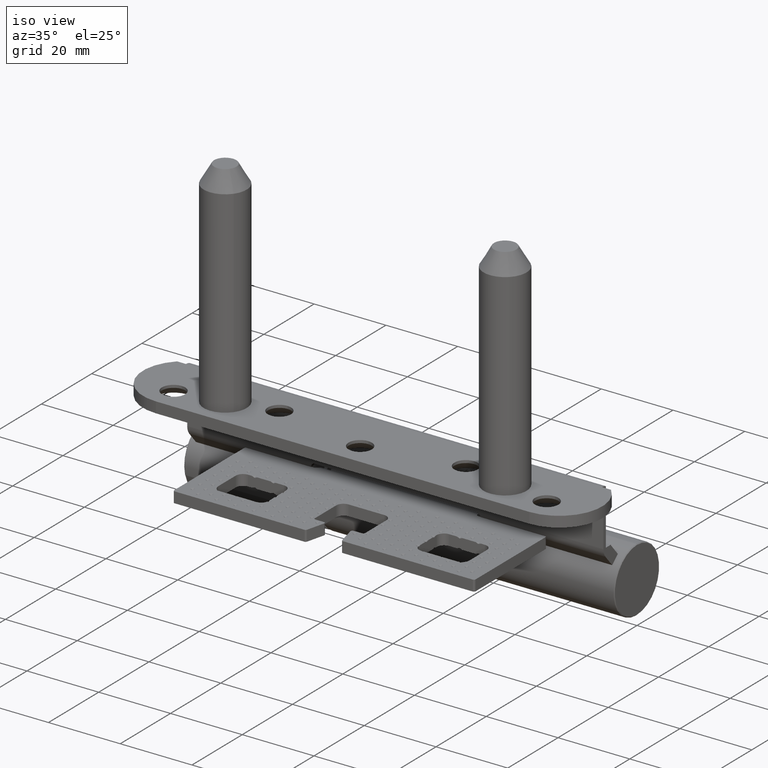
[diagram: clean part render]
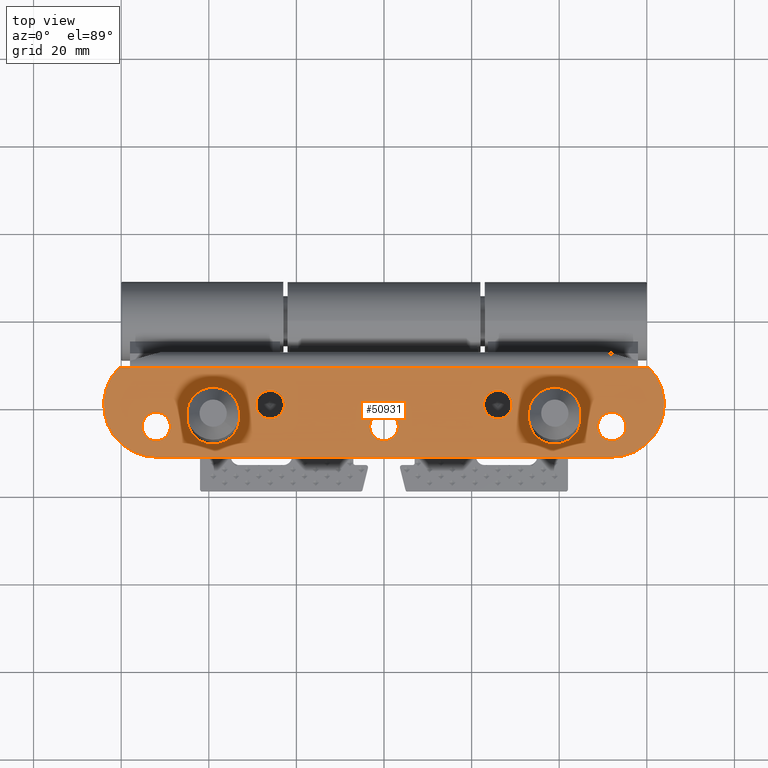
[diagram: tour spotlight — one face highlighted and labeled with its STEP entity id]
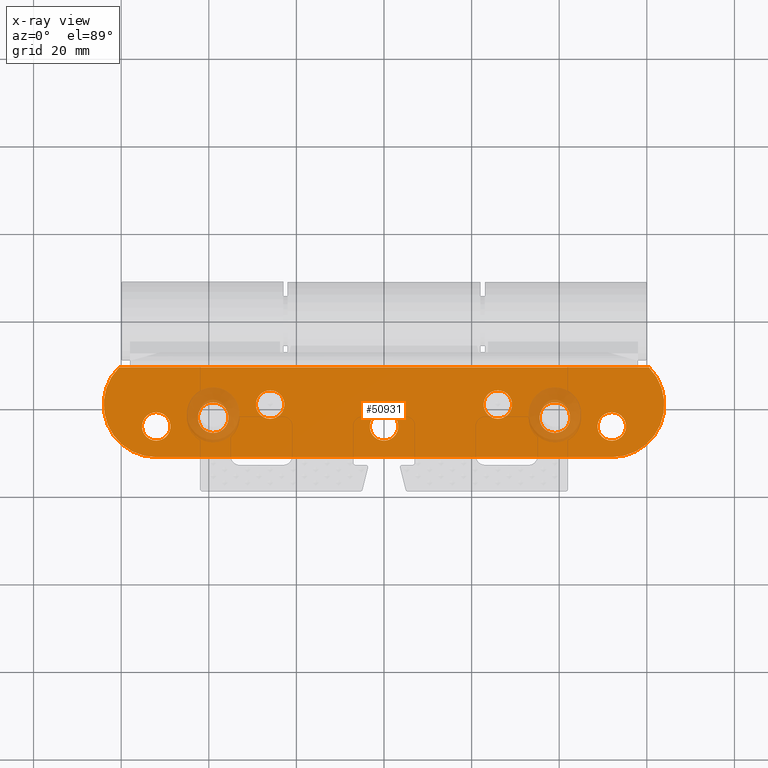
[diagram: x-ray of the same camera — body ghosted, this tour face saturated]
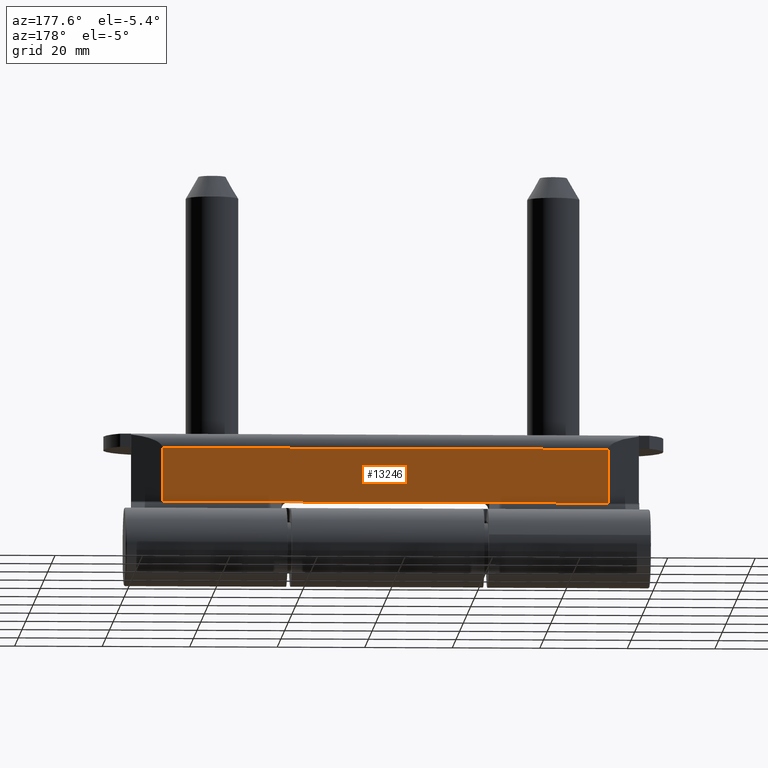
[diagram: tour spotlight — one face highlighted and labeled with its STEP entity id]
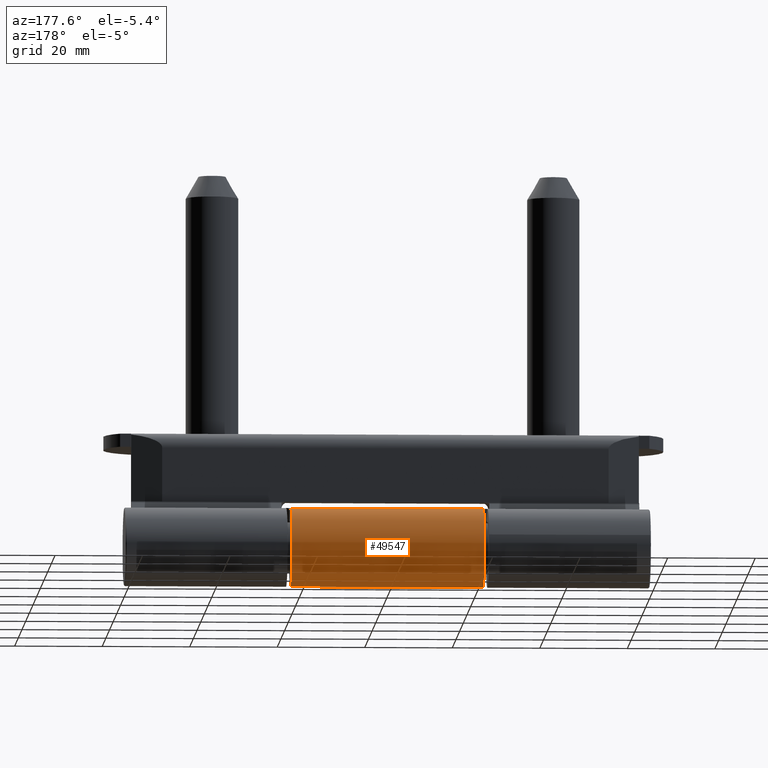
[diagram: tour spotlight — one face highlighted and labeled with its STEP entity id]
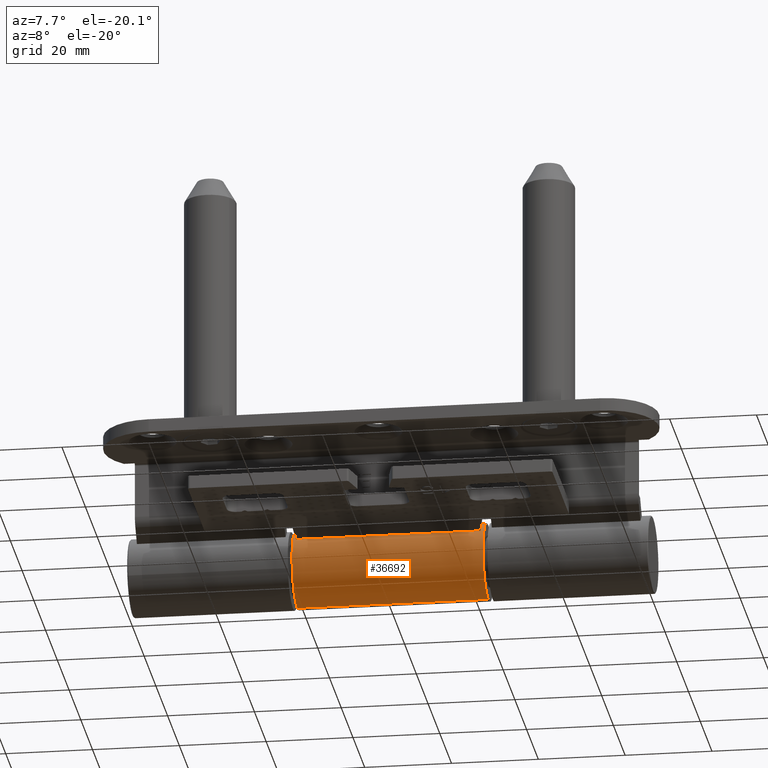
[diagram: tour spotlight — one face highlighted and labeled with its STEP entity id]
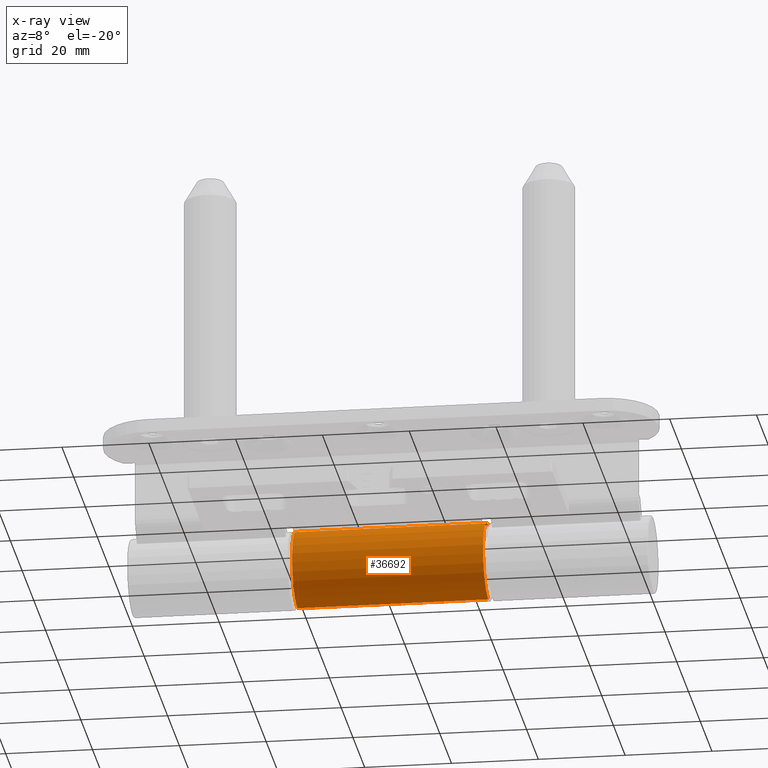
[diagram: x-ray of the same camera — body ghosted, this tour face saturated]
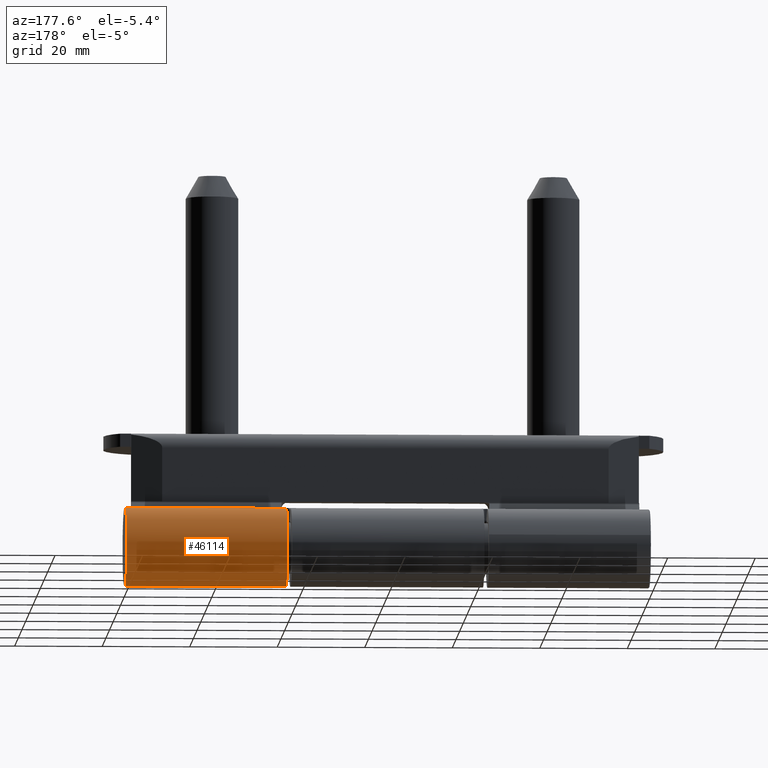
[diagram: tour spotlight — one face highlighted and labeled with its STEP entity id]
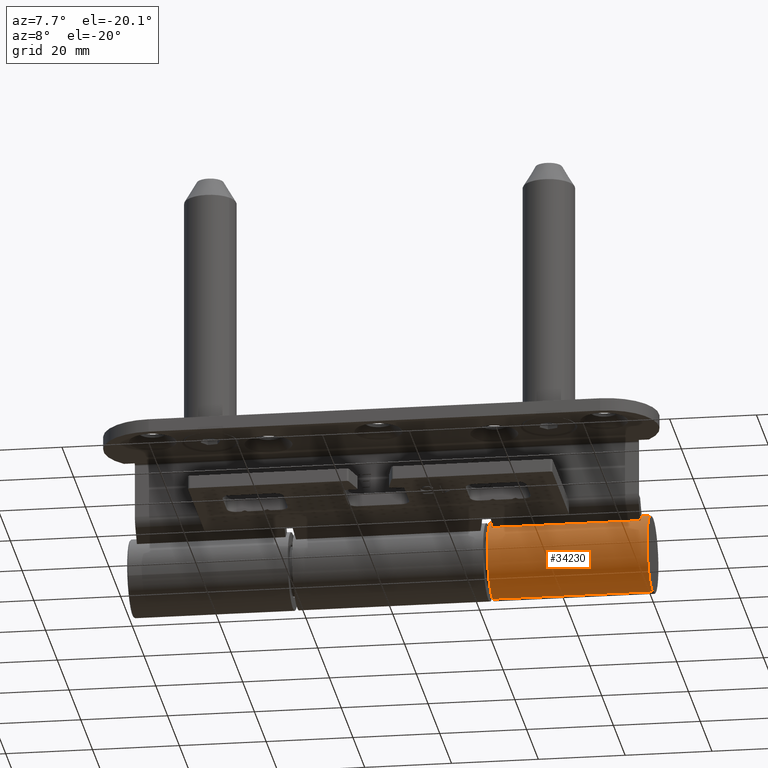
[diagram: tour spotlight — one face highlighted and labeled with its STEP entity id]
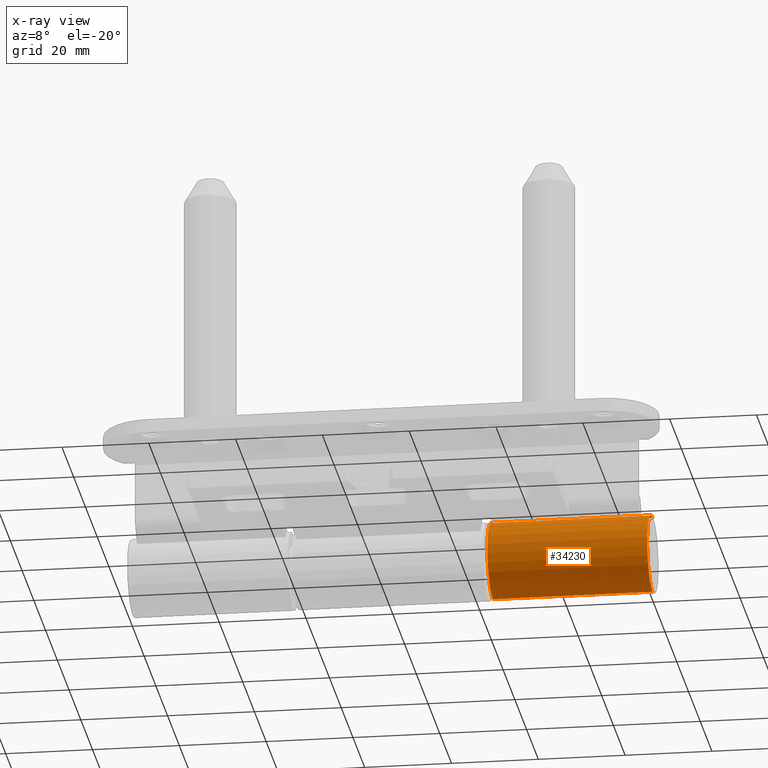
[diagram: x-ray of the same camera — body ghosted, this tour face saturated]
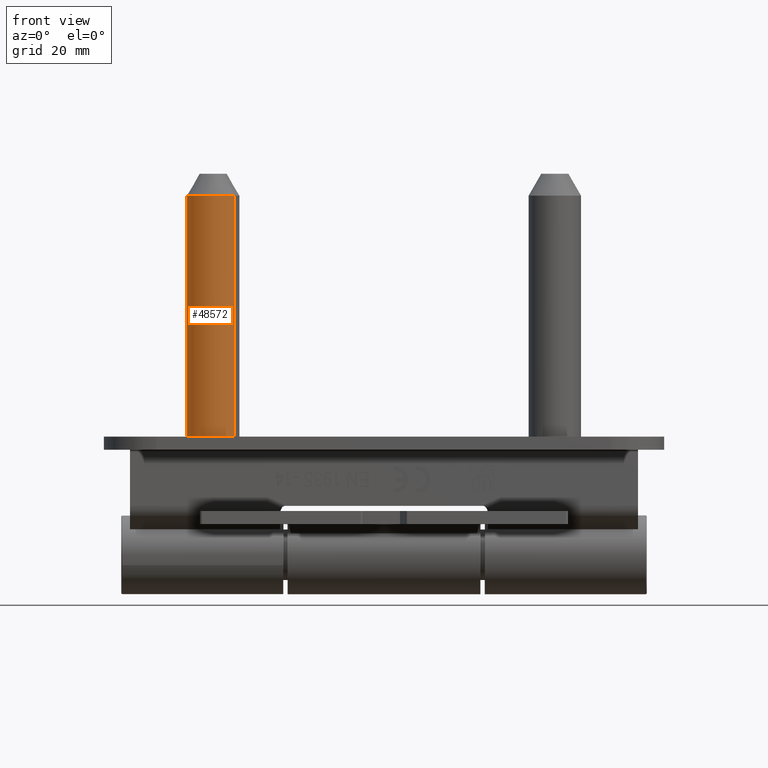
[diagram: tour spotlight — one face highlighted and labeled with its STEP entity id]
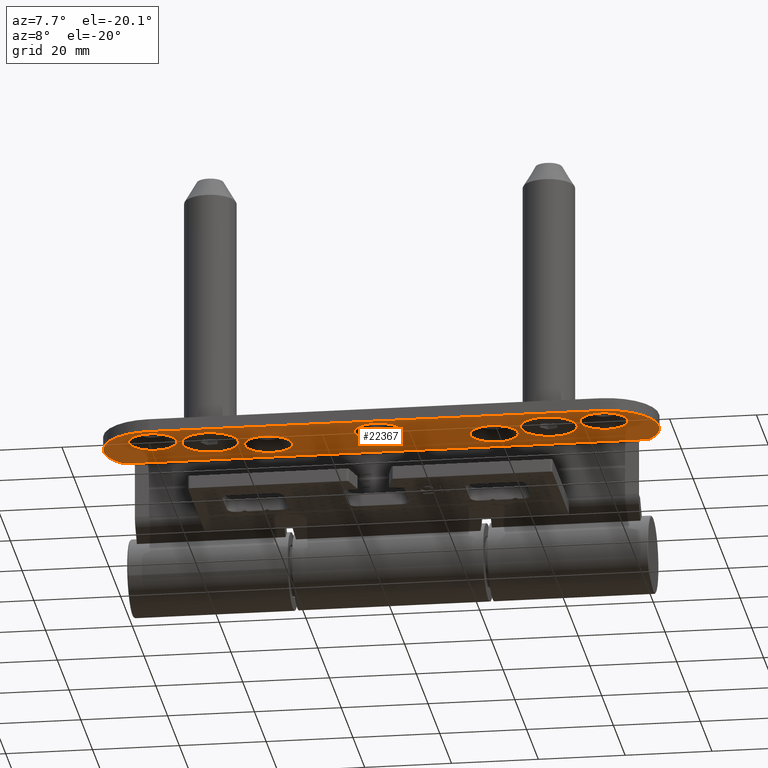
[diagram: tour spotlight — one face highlighted and labeled with its STEP entity id]
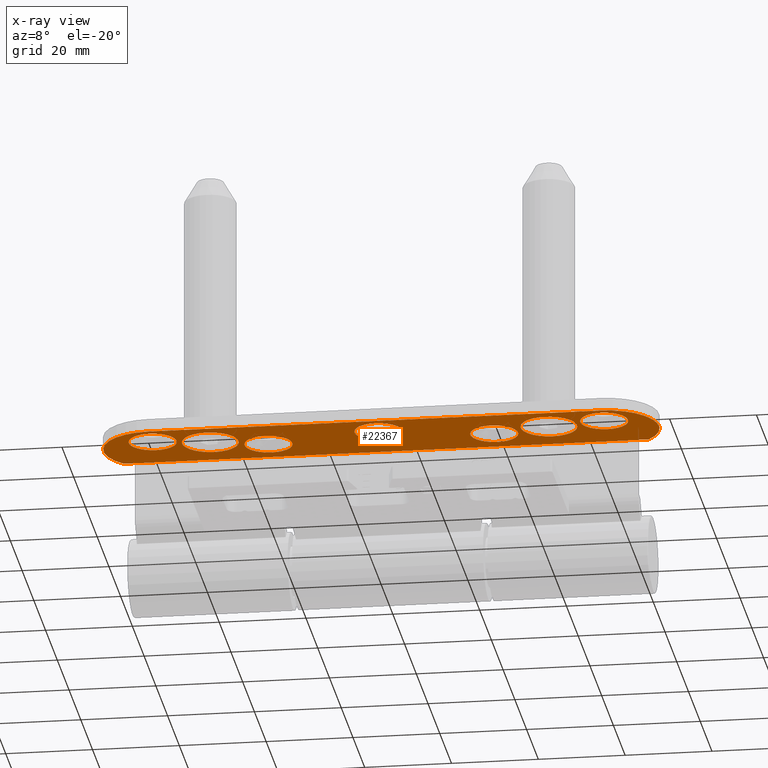
[diagram: x-ray of the same camera — body ghosted, this tour face saturated]
A machine part: a face-by-face anatomy tour. The part has 1896 B-rep faces; the first image is the clean iso view, then the 8 largest visible faces are spotlighted one at a time (largest first), each with its STEP entity span.

Face 1 — top view, entity #50931. An x-ray twin of the same camera follows (body ghosted, this face saturated) — the face is partly hidden behind the body. In plain terms, the highlighted planar face has unit normal (0, 0, 1).
Definition (entity closure, byte-faithful):
#110 = VERTEX_POINT ( 'NONE', #41635 ) ;
#294 = CARTESIAN_POINT ( 'NONE',  ( -12.00000000000000000, 25.99999999999999645, 0.000000000000000000 ) ) ;
#330 = DIRECTION ( 'NONE',  ( 1.000000000000000000, 0.000000000000000000, 0.000000000000000000 ) ) ;
#1113 = DIRECTION ( 'NONE',  ( 0.000000000000000000, 0.000000000000000000, 1.000000000000000000 ) ) ;
#1279 = EDGE_LOOP ( 'NONE', ( #7618, #2461 ) ) ;
#1345 = DIRECTION ( 'NONE',  ( -2.813920346397899413E-33, -1.000000000000000000, 0.000000000000000000 ) ) ;
#1779 = CARTESIAN_POINT ( 'NONE',  ( -6.999999999999999112, 0.000000000000000000, 0.000000000000000000 ) ) ;
#2461 = ORIENTED_EDGE ( 'NONE', *, *, #7276, .T. ) ;
#2510 = DIRECTION ( 'NONE',  ( 0.000000000000000000, 0.000000000000000000, 1.000000000000000000 ) ) ;
#2658 = VECTOR ( 'NONE', #1345, 1000.000000000000000 ) ;
#3196 = EDGE_CURVE ( 'NONE', #42995, #9273, #24697, .T. ) ;
#3618 = EDGE_CURVE ( 'NONE', #45655, #12032, #42470, .T. ) ;
#3893 = CIRCLE ( 'NONE', #16589, 3.499999999999997780 ) ;
#4300 = CARTESIAN_POINT ( 'NONE',  ( -11.99999999999999289, -25.99999999999999645, 0.000000000000000000 ) ) ;
#4339 = AXIS2_PLACEMENT_3D ( 'NONE', #36262, #20626, #8724 ) ;
#4480 = FACE_BOUND ( 'NONE', #24531, .T. ) ;
#4764 = FACE_BOUND ( 'NONE', #22967, .T. ) ;
#4894 = ORIENTED_EDGE ( 'NONE', *, *, #51317, .T. ) ;
#5673 = DIRECTION ( 'NONE',  ( 1.000000000000000000, 0.000000000000000000, 0.000000000000000000 ) ) ;
#5794 = EDGE_CURVE ( 'NONE', #21561, #37195, #12175, .T. ) ;
#5927 = ORIENTED_EDGE ( 'NONE', *, *, #3618, .T. ) ;
#6008 = DIRECTION ( 'NONE',  ( 1.000000000000000000, 2.813920346397899413E-33, 0.000000000000000000 ) ) ;
#6104 = DIRECTION ( 'NONE',  ( 1.000000000000000000, 0.000000000000000000, 0.000000000000000000 ) ) ;
#6443 = ORIENTED_EDGE ( 'NONE', *, *, #29517, .F. ) ;
#7007 = EDGE_CURVE ( 'NONE', #44491, #17536, #7080, .T. ) ;
#7061 = DIRECTION ( 'NONE',  ( 0.000000000000000000, 0.000000000000000000, 1.000000000000000000 ) ) ;
#7080 = CIRCLE ( 'NONE', #41733, 3.249999999999999556 ) ;
#7276 = EDGE_CURVE ( 'NONE', #14471, #41289, #38903, .T. ) ;
#7281 = DIRECTION ( 'NONE',  ( 1.000000000000000000, 0.000000000000000000, 0.000000000000000000 ) ) ;
#7618 = ORIENTED_EDGE ( 'NONE', *, *, #20168, .T. ) ;
#7693 = DIRECTION ( 'NONE',  ( 1.000000000000000000, 0.000000000000000000, 0.000000000000000000 ) ) ;
#8351 = CARTESIAN_POINT ( 'NONE',  ( -5.500000000000003553, 39.00000000000000000, -3.469446951953614189E-15 ) ) ;
#8724 = DIRECTION ( 'NONE',  ( -1.000000000000000000, 8.222287995207818510E-33, 1.224646799147353207E-16 ) ) ;
#9238 = EDGE_CURVE ( 'NONE', #28296, #16739, #45118, .T. ) ;
#9241 = EDGE_CURVE ( 'NONE', #9273, #52145, #35923, .T. ) ;
#9249 = PLANE ( 'NONE',  #4339 ) ;
#9273 = VERTEX_POINT ( 'NONE', #47848 ) ;
#9368 = DIRECTION ( 'NONE',  ( 1.000000000000000000, 0.000000000000000000, 0.000000000000000000 ) ) ;
#9516 = CARTESIAN_POINT ( 'NONE',  ( -12.49999999999999822, 39.00000000000000000, -3.469446951953614189E-15 ) ) ;
#9697 = DIRECTION ( 'NONE',  ( 1.000000000000000000, 0.000000000000000000, 0.000000000000000000 ) ) ;
#10376 = VECTOR ( 'NONE', #17019, 1000.000000000000000 ) ;
#10588 = LINE ( 'NONE', #37613, #2658 ) ;
#11778 = CARTESIAN_POINT ( 'NONE',  ( -8.750000000000000000, 25.99999999999999645, 0.000000000000000000 ) ) ;
#12032 = VERTEX_POINT ( 'NONE', #11778 ) ;
#12175 = CIRCLE ( 'NONE', #18039, 12.00000000000000355 ) ;
#12441 = DIRECTION ( 'NONE',  ( 0.000000000000000000, 0.000000000000000000, 1.000000000000000000 ) ) ;
#12580 = ORIENTED_EDGE ( 'NONE', *, *, #14284, .T. ) ;
#12677 = CARTESIAN_POINT ( 'NONE',  ( -10.24999999999998401, -51.99999999999999289, 0.000000000000000000 ) ) ;
#12845 = DIRECTION ( 'NONE',  ( 1.000000000000000000, 0.000000000000000000, 0.000000000000000000 ) ) ;
#12950 = FACE_BOUND ( 'NONE', #45160, .T. ) ;
#13459 = AXIS2_PLACEMENT_3D ( 'NONE', #1779, #50234, #6008 ) ;
#13584 = CARTESIAN_POINT ( 'NONE',  ( -12.00000000000000355, -52.00000000000001421, 0.000000000000000000 ) ) ;
#14048 = CARTESIAN_POINT ( 'NONE',  ( -15.24999999999999289, -25.99999999999999645, 0.000000000000000000 ) ) ;
#14202 = EDGE_LOOP ( 'NONE', ( #34913, #26885 ) ) ;
#14241 = ORIENTED_EDGE ( 'NONE', *, *, #23560, .T. ) ;
#14284 = EDGE_CURVE ( 'NONE', #23398, #31438, #48429, .T. ) ;
#14471 = VERTEX_POINT ( 'NONE', #9516 ) ;
#14539 = CARTESIAN_POINT ( 'NONE',  ( -8.749999999999994671, -25.99999999999999645, 0.000000000000000000 ) ) ;
#15144 = CARTESIAN_POINT ( 'NONE',  ( -5.499999999999989342, -39.00000000000000000, -3.469446951953614189E-15 ) ) ;
#15501 = AXIS2_PLACEMENT_3D ( 'NONE', #39891, #7061, #19754 ) ;
#15633 = DIRECTION ( 'NONE',  ( 0.000000000000000000, 0.000000000000000000, 1.000000000000000000 ) ) ;
#16060 = CARTESIAN_POINT ( 'NONE',  ( -11.99999999999999289, -25.99999999999999645, 0.000000000000000000 ) ) ;
#16120 = FACE_BOUND ( 'NONE', #14202, .T. ) ;
#16589 = AXIS2_PLACEMENT_3D ( 'NONE', #46230, #2510, #9697 ) ;
#16739 = VERTEX_POINT ( 'NONE', #32225 ) ;
#16955 = AXIS2_PLACEMENT_3D ( 'NONE', #16060, #20293, #17112 ) ;
#16979 = DIRECTION ( 'NONE',  ( -2.813920346397899413E-33, -1.000000000000000000, 0.000000000000000000 ) ) ;
#17019 = DIRECTION ( 'NONE',  ( -2.813920346397899413E-33, -1.000000000000000000, 0.000000000000000000 ) ) ;
#17112 = DIRECTION ( 'NONE',  ( 1.000000000000000000, 0.000000000000000000, 0.000000000000000000 ) ) ;
#17114 = ORIENTED_EDGE ( 'NONE', *, *, #7007, .T. ) ;
#17245 = CARTESIAN_POINT ( 'NONE',  ( 0.000000000000000000, 64.00000000000000000, 0.000000000000000000 ) ) ;
#17536 = VERTEX_POINT ( 'NONE', #28130 ) ;
#17847 = CIRCLE ( 'NONE', #47456, 3.249999999999999556 ) ;
#18039 = AXIS2_PLACEMENT_3D ( 'NONE', #13584, #26536, #9368 ) ;
#18432 = CIRCLE ( 'NONE', #20144, 3.499999999999997780 ) ;
#18514 = ORIENTED_EDGE ( 'NONE', *, *, #3196, .F. ) ;
#18584 = EDGE_CURVE ( 'NONE', #43927, #49703, #36781, .T. ) ;
#18969 = CARTESIAN_POINT ( 'NONE',  ( -20.50000000000000000, 64.00000000000000000, -1.040834085586084257E-14 ) ) ;
#19075 = DIRECTION ( 'NONE',  ( 1.000000000000000000, 0.000000000000000000, 0.000000000000000000 ) ) ;
#19754 = DIRECTION ( 'NONE',  ( 1.000000000000000000, 2.813920346397899413E-33, 0.000000000000000000 ) ) ;
#20144 = AXIS2_PLACEMENT_3D ( 'NONE', #36680, #32178, #52069 ) ;
#20168 = EDGE_CURVE ( 'NONE', #41289, #14471, #3893, .T. ) ;
#20271 = AXIS2_PLACEMENT_3D ( 'NONE', #36588, #1113, #330 ) ;
#20293 = DIRECTION ( 'NONE',  ( 0.000000000000000000, 0.000000000000000000, 1.000000000000000000 ) ) ;
#20626 = DIRECTION ( 'NONE',  ( -1.224646799147353207E-16, 0.000000000000000000, -1.000000000000000000 ) ) ;
#21561 = VERTEX_POINT ( 'NONE', #34311 ) ;
#22248 = CARTESIAN_POINT ( 'NONE',  ( -3.749999999999985789, -51.99999999999999289, 0.000000000000000000 ) ) ;
#22859 = VERTEX_POINT ( 'NONE', #27203 ) ;
#22967 = EDGE_LOOP ( 'NONE', ( #12580, #34048 ) ) ;
#23047 = AXIS2_PLACEMENT_3D ( 'NONE', #39995, #15633, #7693 ) ;
#23398 = VERTEX_POINT ( 'NONE', #22248 ) ;
#23560 = EDGE_CURVE ( 'NONE', #17536, #44491, #27657, .T. ) ;
#24155 = CIRCLE ( 'NONE', #30926, 3.499999999999997780 ) ;
#24531 = EDGE_LOOP ( 'NONE', ( #36901, #39729 ) ) ;
#24697 = LINE ( 'NONE', #33179, #10376 ) ;
#24746 = DIRECTION ( 'NONE',  ( 0.000000000000000000, 0.000000000000000000, 1.000000000000000000 ) ) ;
#24914 = ORIENTED_EDGE ( 'NONE', *, *, #51017, .T. ) ;
#25022 = CARTESIAN_POINT ( 'NONE',  ( -20.50000000000000000, -60.47053717304871157, 0.000000000000000000 ) ) ;
#25197 = LINE ( 'NONE', #17245, #50816 ) ;
#25371 = FACE_BOUND ( 'NONE', #30293, .T. ) ;
#26067 = EDGE_CURVE ( 'NONE', #52145, #37195, #10588, .T. ) ;
#26138 = CIRCLE ( 'NONE', #13459, 3.249999999999999556 ) ;
#26400 = AXIS2_PLACEMENT_3D ( 'NONE', #294, #34418, #29915 ) ;
#26536 = DIRECTION ( 'NONE',  ( -0.000000000000000000, -0.000000000000000000, -1.000000000000000000 ) ) ;
#26885 = ORIENTED_EDGE ( 'NONE', *, *, #47860, .T. ) ;
#27203 = CARTESIAN_POINT ( 'NONE',  ( -12.49999999999998579, -39.00000000000000000, -3.469446951953614189E-15 ) ) ;
#27429 = CIRCLE ( 'NONE', #39260, 12.00000000000000355 ) ;
#27447 = DIRECTION ( 'NONE',  ( -2.813920346397899413E-33, -1.000000000000000000, 0.000000000000000000 ) ) ;
#27657 = CIRCLE ( 'NONE', #28536, 3.249999999999999556 ) ;
#27771 = ORIENTED_EDGE ( 'NONE', *, *, #9241, .F. ) ;
#27997 = AXIS2_PLACEMENT_3D ( 'NONE', #29437, #50845, #6104 ) ;
#28130 = CARTESIAN_POINT ( 'NONE',  ( -10.24999999999999822, 51.99999999999999289, 3.469446951953614189E-15 ) ) ;
#28139 = DIRECTION ( 'NONE',  ( 1.000000000000000000, 0.000000000000000000, 0.000000000000000000 ) ) ;
#28296 = VERTEX_POINT ( 'NONE', #47284 ) ;
#28536 = AXIS2_PLACEMENT_3D ( 'NONE', #39993, #52190, #19075 ) ;
#28586 = DIRECTION ( 'NONE',  ( 1.000000000000000000, 0.000000000000000000, 0.000000000000000000 ) ) ;
#29375 = FACE_BOUND ( 'NONE', #1279, .T. ) ;
#29437 = CARTESIAN_POINT ( 'NONE',  ( -6.999999999999985789, -51.99999999999999289, 0.000000000000000000 ) ) ;
#29517 = EDGE_CURVE ( 'NONE', #110, #42995, #27429, .T. ) ;
#29915 = DIRECTION ( 'NONE',  ( 1.000000000000000000, 0.000000000000000000, 0.000000000000000000 ) ) ;
#30293 = EDGE_LOOP ( 'NONE', ( #17114, #14241 ) ) ;
#30926 = AXIS2_PLACEMENT_3D ( 'NONE', #43254, #31615, #7281 ) ;
#31309 = CIRCLE ( 'NONE', #16955, 3.249999999999999556 ) ;
#31438 = VERTEX_POINT ( 'NONE', #12677 ) ;
#31615 = DIRECTION ( 'NONE',  ( 0.000000000000000000, 0.000000000000000000, 1.000000000000000000 ) ) ;
#32178 = DIRECTION ( 'NONE',  ( 0.000000000000000000, 0.000000000000000000, 1.000000000000000000 ) ) ;
#32225 = CARTESIAN_POINT ( 'NONE',  ( -10.24999999999999822, 3.946220779338725232E-16, 0.000000000000000000 ) ) ;
#33179 = CARTESIAN_POINT ( 'NONE',  ( -20.50000000000000000, 6.776263578034402713E-18, 0.000000000000000000 ) ) ;
#33553 = EDGE_LOOP ( 'NONE', ( #18514, #6443, #39914, #47354, #34002, #27771 ) ) ;
#34002 = ORIENTED_EDGE ( 'NONE', *, *, #26067, .F. ) ;
#34048 = ORIENTED_EDGE ( 'NONE', *, *, #52282, .T. ) ;
#34224 = AXIS2_PLACEMENT_3D ( 'NONE', #4300, #48528, #28139 ) ;
#34311 = CARTESIAN_POINT ( 'NONE',  ( 0.000000000000000000, -52.00000000000001421, 0.000000000000000000 ) ) ;
#34418 = DIRECTION ( 'NONE',  ( 0.000000000000000000, 0.000000000000000000, 1.000000000000000000 ) ) ;
#34913 = ORIENTED_EDGE ( 'NONE', *, *, #9238, .T. ) ;
#35923 = LINE ( 'NONE', #18969, #37516 ) ;
#36262 = CARTESIAN_POINT ( 'NONE',  ( 0.000000000000000000, 64.00000000000000000, 0.000000000000000000 ) ) ;
#36588 = CARTESIAN_POINT ( 'NONE',  ( -9.000000000000001776, 39.00000000000000000, -3.469446951953614189E-15 ) ) ;
#36680 = CARTESIAN_POINT ( 'NONE',  ( -8.999999999999987566, -39.00000000000000000, -3.469446951953614189E-15 ) ) ;
#36781 = CIRCLE ( 'NONE', #34224, 3.249999999999999556 ) ;
#36901 = ORIENTED_EDGE ( 'NONE', *, *, #42113, .T. ) ;
#37195 = VERTEX_POINT ( 'NONE', #25022 ) ;
#37333 = CIRCLE ( 'NONE', #27997, 3.249999999999999556 ) ;
#37516 = VECTOR ( 'NONE', #27447, 1000.000000000000000 ) ;
#37613 = CARTESIAN_POINT ( 'NONE',  ( -20.50000000000000000, 6.776263578034402713E-18, 0.000000000000000000 ) ) ;
#38903 = CIRCLE ( 'NONE', #20271, 3.499999999999997780 ) ;
#39260 = AXIS2_PLACEMENT_3D ( 'NONE', #45431, #24746, #12845 ) ;
#39729 = ORIENTED_EDGE ( 'NONE', *, *, #46900, .T. ) ;
#39885 = VERTEX_POINT ( 'NONE', #15144 ) ;
#39891 = CARTESIAN_POINT ( 'NONE',  ( -6.999999999999999112, 0.000000000000000000, 0.000000000000000000 ) ) ;
#39914 = ORIENTED_EDGE ( 'NONE', *, *, #52175, .T. ) ;
#39993 = CARTESIAN_POINT ( 'NONE',  ( -6.999999999999999112, 51.99999999999999289, 3.469446951953614189E-15 ) ) ;
#39995 = CARTESIAN_POINT ( 'NONE',  ( -6.999999999999985789, -51.99999999999999289, 0.000000000000000000 ) ) ;
#40959 = CARTESIAN_POINT ( 'NONE',  ( -20.50000000000000000, 60.47053717304871157, -1.387778780781445676E-14 ) ) ;
#41034 = FACE_OUTER_BOUND ( 'NONE', #33553, .T. ) ;
#41289 = VERTEX_POINT ( 'NONE', #8351 ) ;
#41635 = CARTESIAN_POINT ( 'NONE',  ( 0.000000000000000000, 51.99999999999998579, 0.000000000000000000 ) ) ;
#41733 = AXIS2_PLACEMENT_3D ( 'NONE', #41940, #46180, #5673 ) ;
#41940 = CARTESIAN_POINT ( 'NONE',  ( -6.999999999999999112, 51.99999999999999289, 3.469446951953614189E-15 ) ) ;
#42113 = EDGE_CURVE ( 'NONE', #39885, #22859, #24155, .T. ) ;
#42470 = CIRCLE ( 'NONE', #26400, 3.249999999999999556 ) ;
#42845 = EDGE_LOOP ( 'NONE', ( #24914, #5927 ) ) ;
#42995 = VERTEX_POINT ( 'NONE', #40959 ) ;
#43254 = CARTESIAN_POINT ( 'NONE',  ( -8.999999999999987566, -39.00000000000000000, -3.469446951953614189E-15 ) ) ;
#43927 = VERTEX_POINT ( 'NONE', #14048 ) ;
#44491 = VERTEX_POINT ( 'NONE', #51045 ) ;
#44806 = CARTESIAN_POINT ( 'NONE',  ( -20.50000000000000000, -58.00000000000000711, 3.469446951953614189E-15 ) ) ;
#45118 = CIRCLE ( 'NONE', #15501, 3.249999999999999556 ) ;
#45160 = EDGE_LOOP ( 'NONE', ( #4894, #46543 ) ) ;
#45431 = CARTESIAN_POINT ( 'NONE',  ( -12.00000000000000355, 51.99999999999998579, 0.000000000000000000 ) ) ;
#45655 = VERTEX_POINT ( 'NONE', #51265 ) ;
#46180 = DIRECTION ( 'NONE',  ( 0.000000000000000000, 0.000000000000000000, 1.000000000000000000 ) ) ;
#46230 = CARTESIAN_POINT ( 'NONE',  ( -9.000000000000001776, 39.00000000000000000, -3.469446951953614189E-15 ) ) ;
#46543 = ORIENTED_EDGE ( 'NONE', *, *, #18584, .T. ) ;
#46900 = EDGE_CURVE ( 'NONE', #22859, #39885, #18432, .T. ) ;
#47284 = CARTESIAN_POINT ( 'NONE',  ( -3.750000000000000000, 9.145241125793171468E-33, 0.000000000000000000 ) ) ;
#47354 = ORIENTED_EDGE ( 'NONE', *, *, #5794, .T. ) ;
#47456 = AXIS2_PLACEMENT_3D ( 'NONE', #48716, #12441, #28586 ) ;
#47848 = CARTESIAN_POINT ( 'NONE',  ( -20.50000000000000000, 58.00000000000000711, -1.040834085586084257E-14 ) ) ;
#47860 = EDGE_CURVE ( 'NONE', #16739, #28296, #26138, .T. ) ;
#48429 = CIRCLE ( 'NONE', #23047, 3.249999999999999556 ) ;
#48528 = DIRECTION ( 'NONE',  ( 0.000000000000000000, 0.000000000000000000, 1.000000000000000000 ) ) ;
#48716 = CARTESIAN_POINT ( 'NONE',  ( -12.00000000000000000, 25.99999999999999645, 0.000000000000000000 ) ) ;
#49222 = FACE_BOUND ( 'NONE', #42845, .T. ) ;
#49703 = VERTEX_POINT ( 'NONE', #14539 ) ;
#50234 = DIRECTION ( 'NONE',  ( 0.000000000000000000, 0.000000000000000000, 1.000000000000000000 ) ) ;
#50816 = VECTOR ( 'NONE', #16979, 1000.000000000000000 ) ;
#50845 = DIRECTION ( 'NONE',  ( 0.000000000000000000, 0.000000000000000000, 1.000000000000000000 ) ) ;
#50931 = ADVANCED_FACE ( 'NONE', ( #29375, #4480, #25371, #49222, #16120, #12950, #4764, #41034 ), #9249, .T. ) ;
#51017 = EDGE_CURVE ( 'NONE', #12032, #45655, #17847, .T. ) ;
#51045 = CARTESIAN_POINT ( 'NONE',  ( -3.750000000000000000, 51.99999999999999289, 3.469446951953614189E-15 ) ) ;
#51265 = CARTESIAN_POINT ( 'NONE',  ( -15.25000000000000000, 25.99999999999999645, 0.000000000000000000 ) ) ;
#51317 = EDGE_CURVE ( 'NONE', #49703, #43927, #31309, .T. ) ;
#52069 = DIRECTION ( 'NONE',  ( 1.000000000000000000, 0.000000000000000000, 0.000000000000000000 ) ) ;
#52145 = VERTEX_POINT ( 'NONE', #44806 ) ;
#52175 = EDGE_CURVE ( 'NONE', #110, #21561, #25197, .T. ) ;
#52190 = DIRECTION ( 'NONE',  ( 0.000000000000000000, 0.000000000000000000, 1.000000000000000000 ) ) ;
#52282 = EDGE_CURVE ( 'NONE', #31438, #23398, #37333, .T. ) ;

Face 2 — auxiliary view, entity #13246. In plain terms, the highlighted planar face has unit normal (0, 1, -0).
Definition (entity closure, byte-faithful):
#451 = VECTOR ( 'NONE', #17234, 1000.000000000000000 ) ;
#2295 = CARTESIAN_POINT ( 'NONE',  ( -24.00000000000000711, 64.00000000000000000, 15.81427028705639515 ) ) ;
#5164 = ORIENTED_EDGE ( 'NONE', *, *, #33786, .F. ) ;
#7711 = VECTOR ( 'NONE', #12370, 1000.000000000000000 ) ;
#9209 = DIRECTION ( 'NONE',  ( -1.000000000000000000, 1.672719317025424787E-32, 2.168404344971008868E-16 ) ) ;
#10084 = EDGE_CURVE ( 'NONE', #48077, #51473, #11884, .T. ) ;
#10394 = VECTOR ( 'NONE', #46511, 1000.000000000000000 ) ;
#11027 = ORIENTED_EDGE ( 'NONE', *, *, #50290, .T. ) ;
#11884 = LINE ( 'NONE', #32014, #51917 ) ;
#12370 = DIRECTION ( 'NONE',  ( -2.813920346397899413E-33, -1.000000000000000000, 0.000000000000000000 ) ) ;
#13246 = ADVANCED_FACE ( 'NONE', ( #17647 ), #13668, .T. ) ;
#13668 = PLANE ( 'NONE',  #26406 ) ;
#16144 = EDGE_CURVE ( 'NONE', #26068, #50959, #30360, .T. ) ;
#16308 = CARTESIAN_POINT ( 'NONE',  ( -24.00000000000000711, 64.00000000000000000, 3.499999999999988454 ) ) ;
#16622 = VERTEX_POINT ( 'NONE', #39409 ) ;
#16943 = EDGE_CURVE ( 'NONE', #27595, #16622, #30864, .T. ) ;
#17234 = DIRECTION ( 'NONE',  ( -2.813920346397899413E-33, -1.000000000000000000, 0.000000000000000000 ) ) ;
#17480 = CARTESIAN_POINT ( 'NONE',  ( -23.99999999999999289, 51.00000000000000000, 15.81427028705640758 ) ) ;
#17647 = FACE_OUTER_BOUND ( 'NONE', #26741, .T. ) ;
#20012 = CARTESIAN_POINT ( 'NONE',  ( -24.00000000000001421, 22.75000000000000000, 15.81427028705639515 ) ) ;
#20020 = CARTESIAN_POINT ( 'NONE',  ( -23.99999999999999289, -51.00000000000002132, 15.81427028705639515 ) ) ;
#20547 = LINE ( 'NONE', #16308, #7711 ) ;
#21205 = CARTESIAN_POINT ( 'NONE',  ( -24.00000000000000711, 64.00000000000000000, 15.81427028705639515 ) ) ;
#22658 = CARTESIAN_POINT ( 'NONE',  ( -24.00000000000001421, 0.000000000000000000, 15.81427028705640048 ) ) ;
#24859 = CARTESIAN_POINT ( 'NONE',  ( -24.00000000000000000, 50.99999999999996447, 3.499999999999995115 ) ) ;
#25330 = CARTESIAN_POINT ( 'NONE',  ( -24.00000000000000711, 64.00000000000000000, -2.775557561562891351E-14 ) ) ;
#26068 = VERTEX_POINT ( 'NONE', #17480 ) ;
#26406 = AXIS2_PLACEMENT_3D ( 'NONE', #25330, #9209, #33796 ) ;
#26741 = EDGE_LOOP ( 'NONE', ( #48363, #33378, #49931, #5164, #49284, #11027 ) ) ;
#27595 = VERTEX_POINT ( 'NONE', #20012 ) ;
#29158 = EDGE_CURVE ( 'NONE', #16622, #48077, #46502, .T. ) ;
#30360 = LINE ( 'NONE', #34065, #10394 ) ;
#30864 = LINE ( 'NONE', #22658, #50205 ) ;
#31475 = DIRECTION ( 'NONE',  ( -1.224646799147352961E-16, 0.000000000000000000, -1.000000000000000000 ) ) ;
#32014 = CARTESIAN_POINT ( 'NONE',  ( -23.99999999999999289, -51.00000000000002132, 15.81427028705639515 ) ) ;
#33378 = ORIENTED_EDGE ( 'NONE', *, *, #29158, .F. ) ;
#33786 = EDGE_CURVE ( 'NONE', #26068, #27595, #49285, .T. ) ;
#33796 = DIRECTION ( 'NONE',  ( 2.168404344971008868E-16, 0.000000000000000000, 1.000000000000000000 ) ) ;
#34065 = CARTESIAN_POINT ( 'NONE',  ( -23.99999999999999289, 51.00000000000000000, 15.81427028705640758 ) ) ;
#35055 = VECTOR ( 'NONE', #50738, 1000.000000000000000 ) ;
#37776 = CARTESIAN_POINT ( 'NONE',  ( -24.00000000000000711, -51.00000000000001421, 3.499999999999988454 ) ) ;
#39409 = CARTESIAN_POINT ( 'NONE',  ( -24.00000000000000000, -22.74999999999998579, 15.81427028705640758 ) ) ;
#46502 = LINE ( 'NONE', #2295, #35055 ) ;
#46511 = DIRECTION ( 'NONE',  ( -1.224646799147352961E-16, 0.000000000000000000, -1.000000000000000000 ) ) ;
#46747 = DIRECTION ( 'NONE',  ( -2.813920346397899413E-33, -1.000000000000000000, 0.000000000000000000 ) ) ;
#48077 = VERTEX_POINT ( 'NONE', #20020 ) ;
#48363 = ORIENTED_EDGE ( 'NONE', *, *, #10084, .F. ) ;
#49284 = ORIENTED_EDGE ( 'NONE', *, *, #16144, .T. ) ;
#49285 = LINE ( 'NONE', #21205, #451 ) ;
#49931 = ORIENTED_EDGE ( 'NONE', *, *, #16943, .F. ) ;
#50205 = VECTOR ( 'NONE', #46747, 1000.000000000000000 ) ;
#50290 = EDGE_CURVE ( 'NONE', #50959, #51473, #20547, .T. ) ;
#50738 = DIRECTION ( 'NONE',  ( -2.813920346397899413E-33, -1.000000000000000000, 0.000000000000000000 ) ) ;
#50959 = VERTEX_POINT ( 'NONE', #24859 ) ;
#51473 = VERTEX_POINT ( 'NONE', #37776 ) ;
#51917 = VECTOR ( 'NONE', #31475, 1000.000000000000000 ) ;

Face 3 — auxiliary view, entity #49547. In plain terms, the highlighted cylindrical surface (partial cylindrical patch) has radius 9 mm, axis along (1, 0, 0).
Definition (entity closure, byte-faithful):
#38 = DIRECTION ( 'NONE',  ( 1.000000000000000000, 1.969277423625668066E-32, 5.176899690512889973E-31 ) ) ;
#309 = LINE ( 'NONE', #16970, #26794 ) ;
#833 = DIRECTION ( 'NONE',  ( 0.000000000000000000, -2.465190328815655761E-31, -1.000000000000000000 ) ) ;
#1992 = AXIS2_PLACEMENT_3D ( 'NONE', #38474, #22303, #50648 ) ;
#5827 = EDGE_CURVE ( 'NONE', #44684, #42791, #11308, .T. ) ;
#7959 = LINE ( 'NONE', #24096, #36882 ) ;
#10676 = CARTESIAN_POINT ( 'NONE',  ( 22.00000000000000000, -2.218671295934095703E-30, -9.000000000000023093 ) ) ;
#11308 = CIRCLE ( 'NONE', #1992, 9.000000000000023093 ) ;
#13550 = AXIS2_PLACEMENT_3D ( 'NONE', #51318, #35670, #22709 ) ;
#14409 = CIRCLE ( 'NONE', #13550, 9.000000000000023093 ) ;
#16724 = DIRECTION ( 'NONE',  ( 1.000000000000000000, 1.969277423625668066E-32, 5.176899690512889973E-31 ) ) ;
#16970 = CARTESIAN_POINT ( 'NONE',  ( 34.99999999999999289, 1.102182119232623039E-15, 9.000000000000023093 ) ) ;
#20949 = FACE_OUTER_BOUND ( 'NONE', #37714, .T. ) ;
#22303 = DIRECTION ( 'NONE',  ( 1.000000000000000000, 1.969277423625668066E-32, 5.176899690512889973E-31 ) ) ;
#22709 = DIRECTION ( 'NONE',  ( 0.000000000000000000, -2.465190328815655761E-31, -1.000000000000000000 ) ) ;
#23718 = AXIS2_PLACEMENT_3D ( 'NONE', #45564, #38, #833 ) ;
#24096 = CARTESIAN_POINT ( 'NONE',  ( 34.99999999999999289, -2.218671295934095703E-30, -9.000000000000023093 ) ) ;
#24357 = DIRECTION ( 'NONE',  ( 1.000000000000000000, 1.969277423625668066E-32, 5.176899690512889973E-31 ) ) ;
#26794 = VECTOR ( 'NONE', #16724, 1000.000000000000000 ) ;
#26932 = CARTESIAN_POINT ( 'NONE',  ( 22.00000000000000000, 1.102182119232619489E-15, 9.000000000000000000 ) ) ;
#35670 = DIRECTION ( 'NONE',  ( 1.000000000000000000, 1.969277423625668066E-32, 5.176899690512889973E-31 ) ) ;
#36858 = EDGE_CURVE ( 'NONE', #48291, #44684, #7959, .T. ) ;
#36882 = VECTOR ( 'NONE', #24357, 1000.000000000000000 ) ;
#37265 = VERTEX_POINT ( 'NONE', #41436 ) ;
#37349 = CYLINDRICAL_SURFACE ( 'NONE', #23718, 9.000000000000023093 ) ;
#37714 = EDGE_LOOP ( 'NONE', ( #46862, #39677, #51693, #48820 ) ) ;
#38474 = CARTESIAN_POINT ( 'NONE',  ( 22.00000000000000000, 0.000000000000000000, 0.000000000000000000 ) ) ;
#39677 = ORIENTED_EDGE ( 'NONE', *, *, #43683, .T. ) ;
#41436 = CARTESIAN_POINT ( 'NONE',  ( -22.00000000000000000, 1.102182119232619489E-15, 9.000000000000000000 ) ) ;
#42791 = VERTEX_POINT ( 'NONE', #26932 ) ;
#43683 = EDGE_CURVE ( 'NONE', #37265, #42791, #309, .T. ) ;
#44684 = VERTEX_POINT ( 'NONE', #10676 ) ;
#45564 = CARTESIAN_POINT ( 'NONE',  ( 34.99999999999999289, 0.000000000000000000, 0.000000000000000000 ) ) ;
#46862 = ORIENTED_EDGE ( 'NONE', *, *, #51212, .T. ) ;
#48291 = VERTEX_POINT ( 'NONE', #51730 ) ;
#48820 = ORIENTED_EDGE ( 'NONE', *, *, #36858, .F. ) ;
#49547 = ADVANCED_FACE ( 'NONE', ( #20949 ), #37349, .T. ) ;
#50648 = DIRECTION ( 'NONE',  ( 0.000000000000000000, -2.465190328815655761E-31, -1.000000000000000000 ) ) ;
#51212 = EDGE_CURVE ( 'NONE', #48291, #37265, #14409, .T. ) ;
#51318 = CARTESIAN_POINT ( 'NONE',  ( -22.00000000000000000, 0.000000000000000000, 0.000000000000000000 ) ) ;
#51693 = ORIENTED_EDGE ( 'NONE', *, *, #5827, .F. ) ;
#51730 = CARTESIAN_POINT ( 'NONE',  ( -22.00000000000000000, -2.218671295934095703E-30, -9.000000000000023093 ) ) ;

Face 4 — auxiliary view, entity #36692. An x-ray twin of the same camera follows (body ghosted, this face saturated) — the face is partly hidden behind the body. In plain terms, the highlighted cylindrical surface (partial cylindrical patch) has radius 9 mm, axis along (1, 0, 0).
Definition (entity closure, byte-faithful):
#309 = LINE ( 'NONE', #16970, #26794 ) ;
#436 = ORIENTED_EDGE ( 'NONE', *, *, #7158, .F. ) ;
#2144 = DIRECTION ( 'NONE',  ( 0.000000000000000000, -2.465190328815655761E-31, -1.000000000000000000 ) ) ;
#3245 = CIRCLE ( 'NONE', #45611, 9.000000000000023093 ) ;
#7158 = EDGE_CURVE ( 'NONE', #42791, #44684, #48073, .T. ) ;
#7393 = EDGE_CURVE ( 'NONE', #37265, #48291, #3245, .T. ) ;
#7959 = LINE ( 'NONE', #24096, #36882 ) ;
#10676 = CARTESIAN_POINT ( 'NONE',  ( 22.00000000000000000, -2.218671295934095703E-30, -9.000000000000023093 ) ) ;
#14998 = ORIENTED_EDGE ( 'NONE', *, *, #7393, .T. ) ;
#15628 = DIRECTION ( 'NONE',  ( 1.000000000000000000, 1.969277423625668066E-32, 5.176899690512889973E-31 ) ) ;
#16724 = DIRECTION ( 'NONE',  ( 1.000000000000000000, 1.969277423625668066E-32, 5.176899690512889973E-31 ) ) ;
#16970 = CARTESIAN_POINT ( 'NONE',  ( 34.99999999999999289, 1.102182119232623039E-15, 9.000000000000023093 ) ) ;
#19073 = DIRECTION ( 'NONE',  ( 0.000000000000000000, -2.465190328815655761E-31, -1.000000000000000000 ) ) ;
#19139 = CARTESIAN_POINT ( 'NONE',  ( 22.00000000000000000, 0.000000000000000000, 0.000000000000000000 ) ) ;
#22244 = DIRECTION ( 'NONE',  ( 1.000000000000000000, 1.969277423625668066E-32, 5.176899690512889973E-31 ) ) ;
#23704 = ORIENTED_EDGE ( 'NONE', *, *, #36858, .T. ) ;
#24096 = CARTESIAN_POINT ( 'NONE',  ( 34.99999999999999289, -2.218671295934095703E-30, -9.000000000000023093 ) ) ;
#24357 = DIRECTION ( 'NONE',  ( 1.000000000000000000, 1.969277423625668066E-32, 5.176899690512889973E-31 ) ) ;
#26478 = CARTESIAN_POINT ( 'NONE',  ( -22.00000000000000000, 0.000000000000000000, 0.000000000000000000 ) ) ;
#26794 = VECTOR ( 'NONE', #16724, 1000.000000000000000 ) ;
#26932 = CARTESIAN_POINT ( 'NONE',  ( 22.00000000000000000, 1.102182119232619489E-15, 9.000000000000000000 ) ) ;
#31854 = DIRECTION ( 'NONE',  ( 1.000000000000000000, 1.969277423625668066E-32, 5.176899690512889973E-31 ) ) ;
#31994 = AXIS2_PLACEMENT_3D ( 'NONE', #19139, #31854, #35296 ) ;
#35159 = AXIS2_PLACEMENT_3D ( 'NONE', #42913, #15628, #19073 ) ;
#35296 = DIRECTION ( 'NONE',  ( 0.000000000000000000, -2.465190328815655761E-31, -1.000000000000000000 ) ) ;
#36692 = ADVANCED_FACE ( 'NONE', ( #46891 ), #42375, .T. ) ;
#36858 = EDGE_CURVE ( 'NONE', #48291, #44684, #7959, .T. ) ;
#36882 = VECTOR ( 'NONE', #24357, 1000.000000000000000 ) ;
#37265 = VERTEX_POINT ( 'NONE', #41436 ) ;
#39187 = ORIENTED_EDGE ( 'NONE', *, *, #43683, .F. ) ;
#40682 = EDGE_LOOP ( 'NONE', ( #39187, #14998, #23704, #436 ) ) ;
#41436 = CARTESIAN_POINT ( 'NONE',  ( -22.00000000000000000, 1.102182119232619489E-15, 9.000000000000000000 ) ) ;
#42375 = CYLINDRICAL_SURFACE ( 'NONE', #35159, 9.000000000000023093 ) ;
#42791 = VERTEX_POINT ( 'NONE', #26932 ) ;
#42913 = CARTESIAN_POINT ( 'NONE',  ( 34.99999999999999289, 0.000000000000000000, 0.000000000000000000 ) ) ;
#43683 = EDGE_CURVE ( 'NONE', #37265, #42791, #309, .T. ) ;
#44684 = VERTEX_POINT ( 'NONE', #10676 ) ;
#45611 = AXIS2_PLACEMENT_3D ( 'NONE', #26478, #22244, #2144 ) ;
#46891 = FACE_OUTER_BOUND ( 'NONE', #40682, .T. ) ;
#48073 = CIRCLE ( 'NONE', #31994, 9.000000000000023093 ) ;
#48291 = VERTEX_POINT ( 'NONE', #51730 ) ;
#51730 = CARTESIAN_POINT ( 'NONE',  ( -22.00000000000000000, -2.218671295934095703E-30, -9.000000000000023093 ) ) ;

Face 5 — auxiliary view, entity #46114. In plain terms, the highlighted cylindrical surface (partial cylindrical patch) has radius 9 mm, axis along (-1, -0, -0).
Definition (entity closure, byte-faithful):
#1369 = CARTESIAN_POINT ( 'NONE',  ( 25.50000000000000355, 6.938893903907228378E-15, 9.000000000000005329 ) ) ;
#2258 = CARTESIAN_POINT ( 'NONE',  ( 25.50000000000000355, 8.041076023139847866E-15, -9.000000000000031974 ) ) ;
#4644 = VERTEX_POINT ( 'NONE', #35066 ) ;
#4944 = DIRECTION ( 'NONE',  ( 3.451266460341919204E-31, 4.930380657631312836E-32, 1.000000000000000000 ) ) ;
#5843 = DIRECTION ( 'NONE',  ( -1.000000000000000000, -1.969277423625670529E-32, -6.286235338479937824E-31 ) ) ;
#5909 = ORIENTED_EDGE ( 'NONE', *, *, #33887, .F. ) ;
#9020 = CARTESIAN_POINT ( 'NONE',  ( 5.657611804631943341E-30, 8.041076023139824201E-15, -9.000000000000000000 ) ) ;
#9812 = AXIS2_PLACEMENT_3D ( 'NONE', #32996, #25540, #4944 ) ;
#10783 = EDGE_CURVE ( 'NONE', #43351, #18100, #30313, .T. ) ;
#12561 = CARTESIAN_POINT ( 'NONE',  ( 36.79999999999999716, 8.041076023139822623E-15, -8.999999999999998224 ) ) ;
#16685 = CARTESIAN_POINT ( 'NONE',  ( 25.50000000000000355, 6.938893903907228378E-15, -1.387778780781445676E-14 ) ) ;
#18100 = VERTEX_POINT ( 'NONE', #9020 ) ;
#18252 = CIRCLE ( 'NONE', #9812, 9.000000000000019540 ) ;
#18392 = DIRECTION ( 'NONE',  ( -1.000000000000000000, -1.969277423625670529E-32, -6.286235338479937824E-31 ) ) ;
#18562 = CIRCLE ( 'NONE', #38853, 9.000000000000017764 ) ;
#23049 = CARTESIAN_POINT ( 'NONE',  ( 36.79999999999999716, 0.000000000000000000, 0.000000000000000000 ) ) ;
#25540 = DIRECTION ( 'NONE',  ( -1.000000000000000000, -1.969277423625670256E-32, -6.286235338479937824E-31 ) ) ;
#25775 = VECTOR ( 'NONE', #5843, 1000.000000000000000 ) ;
#29128 = DIRECTION ( 'NONE',  ( 0.000000000000000000, 0.000000000000000000, 1.000000000000000000 ) ) ;
#30239 = DIRECTION ( 'NONE',  ( 0.000000000000000000, 4.930380657631312836E-32, 1.000000000000000000 ) ) ;
#30313 = LINE ( 'NONE', #2258, #41784 ) ;
#31716 = ORIENTED_EDGE ( 'NONE', *, *, #10783, .T. ) ;
#32806 = EDGE_LOOP ( 'NONE', ( #49801, #31716, #38875, #5909 ) ) ;
#32996 = CARTESIAN_POINT ( 'NONE',  ( 0.000000000000000000, 0.000000000000000000, 0.000000000000000000 ) ) ;
#33263 = CARTESIAN_POINT ( 'NONE',  ( 36.79999999999999716, 4.437342591868190530E-31, 9.000000000000017764 ) ) ;
#33887 = EDGE_CURVE ( 'NONE', #42992, #4644, #38136, .T. ) ;
#35066 = CARTESIAN_POINT ( 'NONE',  ( 3.106139814307733984E-30, 4.437342591868191405E-31, 9.000000000000019540 ) ) ;
#37877 = AXIS2_PLACEMENT_3D ( 'NONE', #16685, #44499, #29128 ) ;
#38136 = LINE ( 'NONE', #1369, #25775 ) ;
#38853 = AXIS2_PLACEMENT_3D ( 'NONE', #23049, #42672, #30239 ) ;
#38875 = ORIENTED_EDGE ( 'NONE', *, *, #41864, .F. ) ;
#40270 = FACE_OUTER_BOUND ( 'NONE', #32806, .T. ) ;
#41784 = VECTOR ( 'NONE', #18392, 1000.000000000000000 ) ;
#41864 = EDGE_CURVE ( 'NONE', #4644, #18100, #18252, .T. ) ;
#42672 = DIRECTION ( 'NONE',  ( -1.000000000000000000, -1.969277423625670256E-32, -6.286235338479937824E-31 ) ) ;
#42992 = VERTEX_POINT ( 'NONE', #33263 ) ;
#43351 = VERTEX_POINT ( 'NONE', #12561 ) ;
#44216 = CYLINDRICAL_SURFACE ( 'NONE', #37877, 9.000000000000017764 ) ;
#44499 = DIRECTION ( 'NONE',  ( -1.000000000000000000, -1.969277423625670256E-32, -6.286235338479937824E-31 ) ) ;
#46114 = ADVANCED_FACE ( 'NONE', ( #40270 ), #44216, .T. ) ;
#48659 = EDGE_CURVE ( 'NONE', #42992, #43351, #18562, .T. ) ;
#49801 = ORIENTED_EDGE ( 'NONE', *, *, #48659, .T. ) ;

Face 6 — auxiliary view, entity #34230. An x-ray twin of the same camera follows (body ghosted, this face saturated) — the face is partly hidden behind the body. In plain terms, the highlighted cylindrical surface (partial cylindrical patch) has radius 9 mm, axis along (-1, -0, -0).
Definition (entity closure, byte-faithful):
#1369 = CARTESIAN_POINT ( 'NONE',  ( 25.50000000000000355, 6.938893903907228378E-15, 9.000000000000005329 ) ) ;
#2258 = CARTESIAN_POINT ( 'NONE',  ( 25.50000000000000355, 8.041076023139847866E-15, -9.000000000000031974 ) ) ;
#2778 = DIRECTION ( 'NONE',  ( 0.000000000000000000, 0.000000000000000000, 1.000000000000000000 ) ) ;
#4644 = VERTEX_POINT ( 'NONE', #35066 ) ;
#5843 = DIRECTION ( 'NONE',  ( -1.000000000000000000, -1.969277423625670529E-32, -6.286235338479937824E-31 ) ) ;
#8089 = AXIS2_PLACEMENT_3D ( 'NONE', #47269, #23155, #2778 ) ;
#9020 = CARTESIAN_POINT ( 'NONE',  ( 5.657611804631943341E-30, 8.041076023139824201E-15, -9.000000000000000000 ) ) ;
#10783 = EDGE_CURVE ( 'NONE', #43351, #18100, #30313, .T. ) ;
#10909 = DIRECTION ( 'NONE',  ( -1.000000000000000000, -1.969277423625670256E-32, -6.286235338479937824E-31 ) ) ;
#12561 = CARTESIAN_POINT ( 'NONE',  ( 36.79999999999999716, 8.041076023139822623E-15, -8.999999999999998224 ) ) ;
#13316 = ORIENTED_EDGE ( 'NONE', *, *, #33887, .T. ) ;
#18100 = VERTEX_POINT ( 'NONE', #9020 ) ;
#18392 = DIRECTION ( 'NONE',  ( -1.000000000000000000, -1.969277423625670529E-32, -6.286235338479937824E-31 ) ) ;
#20032 = DIRECTION ( 'NONE',  ( 3.451266460341919204E-31, 4.930380657631312836E-32, 1.000000000000000000 ) ) ;
#22931 = EDGE_LOOP ( 'NONE', ( #44547, #24567, #13316, #33144 ) ) ;
#23155 = DIRECTION ( 'NONE',  ( -1.000000000000000000, -1.969277423625670256E-32, -6.286235338479937824E-31 ) ) ;
#24567 = ORIENTED_EDGE ( 'NONE', *, *, #38756, .T. ) ;
#25775 = VECTOR ( 'NONE', #5843, 1000.000000000000000 ) ;
#27453 = DIRECTION ( 'NONE',  ( -1.000000000000000000, -1.969277423625670256E-32, -6.286235338479937824E-31 ) ) ;
#27596 = DIRECTION ( 'NONE',  ( 0.000000000000000000, 4.930380657631312836E-32, 1.000000000000000000 ) ) ;
#30313 = LINE ( 'NONE', #2258, #41784 ) ;
#30761 = CARTESIAN_POINT ( 'NONE',  ( 36.79999999999999716, 0.000000000000000000, 0.000000000000000000 ) ) ;
#33144 = ORIENTED_EDGE ( 'NONE', *, *, #41805, .F. ) ;
#33263 = CARTESIAN_POINT ( 'NONE',  ( 36.79999999999999716, 4.437342591868190530E-31, 9.000000000000017764 ) ) ;
#33887 = EDGE_CURVE ( 'NONE', #42992, #4644, #38136, .T. ) ;
#34230 = ADVANCED_FACE ( 'NONE', ( #34812 ), #38272, .T. ) ;
#34812 = FACE_OUTER_BOUND ( 'NONE', #22931, .T. ) ;
#35066 = CARTESIAN_POINT ( 'NONE',  ( 3.106139814307733984E-30, 4.437342591868191405E-31, 9.000000000000019540 ) ) ;
#35158 = AXIS2_PLACEMENT_3D ( 'NONE', #39893, #27453, #20032 ) ;
#38136 = LINE ( 'NONE', #1369, #25775 ) ;
#38272 = CYLINDRICAL_SURFACE ( 'NONE', #8089, 9.000000000000017764 ) ;
#38756 = EDGE_CURVE ( 'NONE', #43351, #42992, #47145, .T. ) ;
#39893 = CARTESIAN_POINT ( 'NONE',  ( 0.000000000000000000, 0.000000000000000000, 0.000000000000000000 ) ) ;
#41784 = VECTOR ( 'NONE', #18392, 1000.000000000000000 ) ;
#41805 = EDGE_CURVE ( 'NONE', #18100, #4644, #43634, .T. ) ;
#42992 = VERTEX_POINT ( 'NONE', #33263 ) ;
#43351 = VERTEX_POINT ( 'NONE', #12561 ) ;
#43634 = CIRCLE ( 'NONE', #35158, 9.000000000000019540 ) ;
#44547 = ORIENTED_EDGE ( 'NONE', *, *, #10783, .F. ) ;
#47145 = CIRCLE ( 'NONE', #47989, 9.000000000000017764 ) ;
#47269 = CARTESIAN_POINT ( 'NONE',  ( 25.50000000000000355, 6.938893903907228378E-15, -1.387778780781445676E-14 ) ) ;
#47989 = AXIS2_PLACEMENT_3D ( 'NONE', #30761, #10909, #27596 ) ;

Face 7 — front view, entity #48572. In plain terms, the highlighted cylindrical surface (edge-blend (fillet) strip) has radius 6 mm, axis along (0, 0, 1).
Definition (entity closure, byte-faithful):
#4666 = DIRECTION ( 'NONE',  ( -1.691070255701901416E-17, -1.000000000000000000, -4.432492115537240686E-16 ) ) ;
#4738 = ORIENTED_EDGE ( 'NONE', *, *, #31829, .F. ) ;
#6525 = ORIENTED_EDGE ( 'NONE', *, *, #50113, .T. ) ;
#8392 = DIRECTION ( 'NONE',  ( -1.691070255701901416E-17, -1.000000000000000000, -4.432492115537240686E-16 ) ) ;
#8644 = CARTESIAN_POINT ( 'NONE',  ( 3.066256431201245146E-15, 2.659495269322345595E-15, 6.000000000000015099 ) ) ;
#9268 = AXIS2_PLACEMENT_3D ( 'NONE', #17013, #45095, #16767 ) ;
#9341 = VERTEX_POINT ( 'NONE', #16838 ) ;
#14783 = CIRCLE ( 'NONE', #30847, 6.000000000000015099 ) ;
#16767 = DIRECTION ( 'NONE',  ( -3.885780586188039017E-16, -4.432492115537231318E-16, -1.000000000000000000 ) ) ;
#16838 = CARTESIAN_POINT ( 'NONE',  ( 3.236300116782331315E-14, 60.00000000000010658, -5.999999999999900524 ) ) ;
#17013 = CARTESIAN_POINT ( 'NONE',  ( 0.000000000000000000, 0.000000000000000000, 0.000000000000000000 ) ) ;
#17093 = CARTESIAN_POINT ( 'NONE',  ( 2.416021864497921806E-15, 5.000000000000000888, 6.000000000000007994 ) ) ;
#17567 = DIRECTION ( 'NONE',  ( -1.691070255701901416E-17, -1.000000000000000000, -4.432492115537240686E-16 ) ) ;
#19855 = EDGE_CURVE ( 'NONE', #31870, #44253, #44492, .T. ) ;
#20805 = DIRECTION ( 'NONE',  ( -3.885780586188041482E-16, -4.336808689942006889E-16, -1.000000000000000000 ) ) ;
#21223 = VECTOR ( 'NONE', #35406, 1000.000000000000000 ) ;
#22703 = LINE ( 'NONE', #30635, #21223 ) ;
#24563 = EDGE_LOOP ( 'NONE', ( #4738, #37331, #6525, #45822 ) ) ;
#25016 = AXIS2_PLACEMENT_3D ( 'NONE', #44898, #4666, #20805 ) ;
#29495 = DIRECTION ( 'NONE',  ( -3.885780586188041482E-16, 0.000000000000000000, -1.000000000000000000 ) ) ;
#30635 = CARTESIAN_POINT ( 'NONE',  ( -2.331468351712829129E-15, -2.659495269322345595E-15, -6.000000000000015099 ) ) ;
#30642 = CARTESIAN_POINT ( 'NONE',  ( 3.615854264303923925E-15, 60.00000000000010658, 6.000000000000114575 ) ) ;
#30847 = AXIS2_PLACEMENT_3D ( 'NONE', #45641, #17567, #29495 ) ;
#31829 = EDGE_CURVE ( 'NONE', #51046, #31870, #48903, .T. ) ;
#31870 = VERTEX_POINT ( 'NONE', #17093 ) ;
#33444 = CYLINDRICAL_SURFACE ( 'NONE', #9268, 6.000000000000015099 ) ;
#34619 = CARTESIAN_POINT ( 'NONE',  ( -1.512126759439317281E-15, 5.000000000000007105, -6.000000000000011546 ) ) ;
#35406 = DIRECTION ( 'NONE',  ( -1.691070255701901416E-17, -1.000000000000000000, -4.432492115537240686E-16 ) ) ;
#35412 = EDGE_CURVE ( 'NONE', #51046, #9341, #14783, .T. ) ;
#37331 = ORIENTED_EDGE ( 'NONE', *, *, #35412, .T. ) ;
#41828 = VECTOR ( 'NONE', #8392, 1000.000000000000000 ) ;
#42154 = FACE_OUTER_BOUND ( 'NONE', #24563, .T. ) ;
#44253 = VERTEX_POINT ( 'NONE', #34619 ) ;
#44492 = CIRCLE ( 'NONE', #25016, 6.000000000000015099 ) ;
#44898 = CARTESIAN_POINT ( 'NONE',  ( -2.081668171172168513E-14, 5.000000000000004441, 2.775557561562891351E-14 ) ) ;
#45095 = DIRECTION ( 'NONE',  ( -1.691070255701901416E-17, -1.000000000000000000, -4.432492115537240686E-16 ) ) ;
#45641 = CARTESIAN_POINT ( 'NONE',  ( 3.469446951953614189E-14, 60.00000000000010658, 1.144917494144692682E-13 ) ) ;
#45822 = ORIENTED_EDGE ( 'NONE', *, *, #19855, .F. ) ;
#48572 = ADVANCED_FACE ( 'NONE', ( #42154 ), #33444, .T. ) ;
#48903 = LINE ( 'NONE', #8644, #41828 ) ;
#50113 = EDGE_CURVE ( 'NONE', #9341, #44253, #22703, .T. ) ;
#51046 = VERTEX_POINT ( 'NONE', #30642 ) ;

Face 8 — auxiliary view, entity #22367. An x-ray twin of the same camera follows (body ghosted, this face saturated) — the face is partly hidden behind the body. In plain terms, the highlighted planar face has unit normal (0, 0, 1).
Definition (entity closure, byte-faithful):
#365 = EDGE_CURVE ( 'NONE', #26683, #6855, #8846, .T. ) ;
#1360 = AXIS2_PLACEMENT_3D ( 'NONE', #30576, #42240, #6228 ) ;
#1534 = ORIENTED_EDGE ( 'NONE', *, *, #20225, .F. ) ;
#1599 = DIRECTION ( 'NONE',  ( 0.000000000000000000, 0.000000000000000000, 1.000000000000000000 ) ) ;
#1981 = DIRECTION ( 'NONE',  ( 1.000000000000000000, 0.000000000000000000, 0.000000000000000000 ) ) ;
#2131 = CARTESIAN_POINT ( 'NONE',  ( -20.50000000000000000, 58.00000000000001421, 3.000000000000000000 ) ) ;
#2132 = EDGE_LOOP ( 'NONE', ( #26678, #28817 ) ) ;
#2299 = DIRECTION ( 'NONE',  ( 1.000000000000000000, 0.000000000000000000, 0.000000000000000000 ) ) ;
#2363 = DIRECTION ( 'NONE',  ( 0.000000000000000000, 0.000000000000000000, 1.000000000000000000 ) ) ;
#2652 = DIRECTION ( 'NONE',  ( 0.000000000000000000, 0.000000000000000000, 1.000000000000000000 ) ) ;
#2892 = AXIS2_PLACEMENT_3D ( 'NONE', #17786, #33941, #50100 ) ;
#2907 = ORIENTED_EDGE ( 'NONE', *, *, #3939, .F. ) ;
#3063 = DIRECTION ( 'NONE',  ( 0.000000000000000000, 0.000000000000000000, 1.000000000000000000 ) ) ;
#3854 = CARTESIAN_POINT ( 'NONE',  ( -20.50000000000000000, -3.388131789017201356E-18, 3.000000000000000000 ) ) ;
#3939 = EDGE_CURVE ( 'NONE', #8202, #42148, #10390, .T. ) ;
#3994 = DIRECTION ( 'NONE',  ( 1.000000000000000000, 0.000000000000000000, 0.000000000000000000 ) ) ;
#4182 = AXIS2_PLACEMENT_3D ( 'NONE', #23437, #3063, #23685 ) ;
#4345 = EDGE_CURVE ( 'NONE', #17510, #29543, #16588, .T. ) ;
#5087 = VERTEX_POINT ( 'NONE', #38579 ) ;
#5103 = EDGE_CURVE ( 'NONE', #35317, #45357, #40522, .T. ) ;
#5555 = CIRCLE ( 'NONE', #24138, 12.00000000000000355 ) ;
#5605 = CARTESIAN_POINT ( 'NONE',  ( -11.99999999999999289, -25.99999999999999645, 2.999999999999998224 ) ) ;
#5678 = CARTESIAN_POINT ( 'NONE',  ( -20.50000000000000000, 64.00000000000000000, 3.000000000000005329 ) ) ;
#6228 = DIRECTION ( 'NONE',  ( 1.000000000000000000, 0.000000000000000000, 0.000000000000000000 ) ) ;
#6385 = FACE_BOUND ( 'NONE', #2132, .T. ) ;
#6555 = AXIS2_PLACEMENT_3D ( 'NONE', #9148, #32963, #12834 ) ;
#6577 = EDGE_CURVE ( 'NONE', #8459, #21897, #27877, .T. ) ;
#6611 = CARTESIAN_POINT ( 'NONE',  ( -6.999999999999985789, -51.99999999999999289, 3.000000000000000000 ) ) ;
#6855 = VERTEX_POINT ( 'NONE', #13359 ) ;
#6963 = CARTESIAN_POINT ( 'NONE',  ( -1.499999999999985789, -51.99999999999999289, 3.000000000000000000 ) ) ;
#7425 = EDGE_CURVE ( 'NONE', #46910, #50376, #51752, .T. ) ;
#7608 = DIRECTION ( 'NONE',  ( 1.000000000000000000, 0.000000000000000000, 0.000000000000000000 ) ) ;
#8202 = VERTEX_POINT ( 'NONE', #38819 ) ;
#8419 = CARTESIAN_POINT ( 'NONE',  ( -1.499999999999999556, 51.99999999999999289, 2.999999999999998224 ) ) ;
#8449 = DIRECTION ( 'NONE',  ( 0.000000000000000000, 0.000000000000000000, 1.000000000000000000 ) ) ;
#8459 = VERTEX_POINT ( 'NONE', #14565 ) ;
#8846 = CIRCLE ( 'NONE', #2892, 6.500000000000000888 ) ;
#9148 = CARTESIAN_POINT ( 'NONE',  ( -6.999999999999999112, 51.99999999999999289, 2.999999999999998224 ) ) ;
#9410 = AXIS2_PLACEMENT_3D ( 'NONE', #39393, #51309, #7608 ) ;
#9567 = FACE_BOUND ( 'NONE', #33082, .T. ) ;
#9645 = DIRECTION ( 'NONE',  ( -2.813920346397899413E-33, -1.000000000000000000, 0.000000000000000000 ) ) ;
#9762 = AXIS2_PLACEMENT_3D ( 'NONE', #40275, #48454, #3994 ) ;
#10339 = DIRECTION ( 'NONE',  ( -1.000000000000000000, 8.222287995207818510E-33, 1.224646799147353207E-16 ) ) ;
#10390 = CIRCLE ( 'NONE', #30684, 5.500000000000000000 ) ;
#10748 = EDGE_CURVE ( 'NONE', #21897, #8459, #40133, .T. ) ;
#11469 = DIRECTION ( 'NONE',  ( -2.813920346397899413E-33, -1.000000000000000000, 0.000000000000000000 ) ) ;
#12343 = VECTOR ( 'NONE', #11469, 1000.000000000000000 ) ;
#12346 = ORIENTED_EDGE ( 'NONE', *, *, #18987, .F. ) ;
#12834 = DIRECTION ( 'NONE',  ( 1.000000000000000000, 0.000000000000000000, 0.000000000000000000 ) ) ;
#13359 = CARTESIAN_POINT ( 'NONE',  ( -2.499999999999986677, -39.00000000000000000, 3.000000000000001776 ) ) ;
#13471 = EDGE_CURVE ( 'NONE', #18223, #45912, #16807, .T. ) ;
#13531 = FACE_BOUND ( 'NONE', #21602, .T. ) ;
#13578 = EDGE_CURVE ( 'NONE', #43845, #18223, #41946, .T. ) ;
#13649 = CARTESIAN_POINT ( 'NONE',  ( -6.999999999999985789, -51.99999999999999289, 3.000000000000000000 ) ) ;
#13784 = FACE_BOUND ( 'NONE', #16505, .T. ) ;
#13936 = CIRCLE ( 'NONE', #9762, 5.500000000000000000 ) ;
#14171 = DIRECTION ( 'NONE',  ( -0.000000000000000000, -0.000000000000000000, -1.000000000000000000 ) ) ;
#14212 = CARTESIAN_POINT ( 'NONE',  ( -12.00000000000000355, 51.99999999999998579, 2.999999999999998224 ) ) ;
#14565 = CARTESIAN_POINT ( 'NONE',  ( -17.50000000000000000, 25.99999999999999645, 3.000000000000000000 ) ) ;
#14600 = CARTESIAN_POINT ( 'NONE',  ( -6.999999999999999112, 51.99999999999999289, 2.999999999999998224 ) ) ;
#14705 = CIRCLE ( 'NONE', #23041, 5.500000000000000000 ) ;
#15803 = EDGE_CURVE ( 'NONE', #25083, #17409, #14705, .T. ) ;
#16505 = EDGE_LOOP ( 'NONE', ( #33933, #32006 ) ) ;
#16512 = CARTESIAN_POINT ( 'NONE',  ( -15.49999999999998757, -39.00000000000000000, 3.000000000000001776 ) ) ;
#16588 = LINE ( 'NONE', #44669, #33280 ) ;
#16807 = LINE ( 'NONE', #3854, #33169 ) ;
#17409 = VERTEX_POINT ( 'NONE', #6963 ) ;
#17510 = VERTEX_POINT ( 'NONE', #40332 ) ;
#17682 = AXIS2_PLACEMENT_3D ( 'NONE', #39080, #34838, #2299 ) ;
#17725 = DIRECTION ( 'NONE',  ( 1.000000000000000000, 2.804088342325165993E-33, 0.000000000000000000 ) ) ;
#17786 = CARTESIAN_POINT ( 'NONE',  ( -8.999999999999987566, -39.00000000000000000, 3.000000000000001776 ) ) ;
#17821 = CARTESIAN_POINT ( 'NONE',  ( -20.50000000000000000, -60.47053717304871157, 2.999999999999998224 ) ) ;
#17857 = DIRECTION ( 'NONE',  ( 0.000000000000000000, 0.000000000000000000, 1.000000000000000000 ) ) ;
#18042 = ORIENTED_EDGE ( 'NONE', *, *, #15803, .F. ) ;
#18076 = CARTESIAN_POINT ( 'NONE',  ( -6.500000000000000888, 25.99999999999999645, 3.000000000000000000 ) ) ;
#18223 = VERTEX_POINT ( 'NONE', #50549 ) ;
#18497 = ORIENTED_EDGE ( 'NONE', *, *, #13471, .T. ) ;
#18568 = DIRECTION ( 'NONE',  ( 1.000000000000000000, 0.000000000000000000, 0.000000000000000000 ) ) ;
#18987 = EDGE_CURVE ( 'NONE', #50376, #46910, #13936, .T. ) ;
#19519 = EDGE_LOOP ( 'NONE', ( #45422, #36757, #29321, #18497, #32885, #20996 ) ) ;
#19541 = EDGE_CURVE ( 'NONE', #17510, #5087, #5555, .T. ) ;
#20225 = EDGE_CURVE ( 'NONE', #6855, #26683, #24172, .T. ) ;
#20897 = ORIENTED_EDGE ( 'NONE', *, *, #37886, .F. ) ;
#20942 = CIRCLE ( 'NONE', #6555, 5.500000000000000000 ) ;
#20996 = ORIENTED_EDGE ( 'NONE', *, *, #4345, .F. ) ;
#21602 = EDGE_LOOP ( 'NONE', ( #39930, #2907 ) ) ;
#21740 = AXIS2_PLACEMENT_3D ( 'NONE', #13649, #40970, #38021 ) ;
#21897 = VERTEX_POINT ( 'NONE', #18076 ) ;
#21984 = FACE_BOUND ( 'NONE', #26404, .T. ) ;
#22367 = ADVANCED_FACE ( 'NONE', ( #13784, #21984, #6385, #13531, #38146, #25435, #34443, #9567 ), #41601, .F. ) ;
#22929 = VERTEX_POINT ( 'NONE', #8419 ) ;
#23041 = AXIS2_PLACEMENT_3D ( 'NONE', #6611, #2363, #34647 ) ;
#23306 = DIRECTION ( 'NONE',  ( 1.000000000000000000, 0.000000000000000000, 0.000000000000000000 ) ) ;
#23437 = CARTESIAN_POINT ( 'NONE',  ( -12.00000000000000000, 25.99999999999999645, 3.000000000000000000 ) ) ;
#23685 = DIRECTION ( 'NONE',  ( 1.000000000000000000, 0.000000000000000000, 0.000000000000000000 ) ) ;
#23786 = AXIS2_PLACEMENT_3D ( 'NONE', #37874, #1599, #17725 ) ;
#24138 = AXIS2_PLACEMENT_3D ( 'NONE', #14212, #43051, #43303 ) ;
#24172 = CIRCLE ( 'NONE', #1360, 6.500000000000000888 ) ;
#24543 = CARTESIAN_POINT ( 'NONE',  ( -15.50000000000000178, 39.00000000000000000, 3.000000000000001776 ) ) ;
#24621 = ORIENTED_EDGE ( 'NONE', *, *, #7425, .F. ) ;
#24878 = CIRCLE ( 'NONE', #28295, 12.00000000000000355 ) ;
#25083 = VERTEX_POINT ( 'NONE', #38838 ) ;
#25435 = FACE_BOUND ( 'NONE', #51211, .T. ) ;
#26078 = EDGE_CURVE ( 'NONE', #42148, #8202, #44100, .T. ) ;
#26404 = EDGE_LOOP ( 'NONE', ( #34277, #28044 ) ) ;
#26678 = ORIENTED_EDGE ( 'NONE', *, *, #10748, .F. ) ;
#26683 = VERTEX_POINT ( 'NONE', #16512 ) ;
#27877 = CIRCLE ( 'NONE', #4182, 5.500000000000000000 ) ;
#28044 = ORIENTED_EDGE ( 'NONE', *, *, #38765, .F. ) ;
#28295 = AXIS2_PLACEMENT_3D ( 'NONE', #50462, #14171, #30320 ) ;
#28489 = CARTESIAN_POINT ( 'NONE',  ( 0.000000000000000000, -52.00000000000001421, 3.000000000000000000 ) ) ;
#28817 = ORIENTED_EDGE ( 'NONE', *, *, #6577, .F. ) ;
#29321 = ORIENTED_EDGE ( 'NONE', *, *, #13578, .T. ) ;
#29391 = CIRCLE ( 'NONE', #40393, 5.500000000000000000 ) ;
#29543 = VERTEX_POINT ( 'NONE', #28489 ) ;
#30319 = CARTESIAN_POINT ( 'NONE',  ( -17.49999999999999645, -25.99999999999999645, 2.999999999999998224 ) ) ;
#30320 = DIRECTION ( 'NONE',  ( 1.000000000000000000, 0.000000000000000000, 0.000000000000000000 ) ) ;
#30459 = CARTESIAN_POINT ( 'NONE',  ( 0.000000000000000000, 64.00000000000000000, 3.000000000000000000 ) ) ;
#30576 = CARTESIAN_POINT ( 'NONE',  ( -8.999999999999987566, -39.00000000000000000, 3.000000000000001776 ) ) ;
#30684 = AXIS2_PLACEMENT_3D ( 'NONE', #41022, #8449, #40489 ) ;
#30807 = AXIS2_PLACEMENT_3D ( 'NONE', #38253, #17857, #1981 ) ;
#31921 = DIRECTION ( 'NONE',  ( -2.813920346397899413E-33, -1.000000000000000000, 0.000000000000000000 ) ) ;
#32006 = ORIENTED_EDGE ( 'NONE', *, *, #50049, .F. ) ;
#32885 = ORIENTED_EDGE ( 'NONE', *, *, #33128, .F. ) ;
#32963 = DIRECTION ( 'NONE',  ( 0.000000000000000000, 0.000000000000000000, 1.000000000000000000 ) ) ;
#33082 = EDGE_LOOP ( 'NONE', ( #1534, #38255 ) ) ;
#33128 = EDGE_CURVE ( 'NONE', #29543, #45912, #24878, .T. ) ;
#33169 = VECTOR ( 'NONE', #31921, 1000.000000000000000 ) ;
#33280 = VECTOR ( 'NONE', #39896, 1000.000000000000000 ) ;
#33933 = ORIENTED_EDGE ( 'NONE', *, *, #5103, .F. ) ;
#33941 = DIRECTION ( 'NONE',  ( 0.000000000000000000, 0.000000000000000000, 1.000000000000000000 ) ) ;
#34277 = ORIENTED_EDGE ( 'NONE', *, *, #45888, .F. ) ;
#34443 = FACE_OUTER_BOUND ( 'NONE', #19519, .T. ) ;
#34647 = DIRECTION ( 'NONE',  ( 1.000000000000000000, 0.000000000000000000, 0.000000000000000000 ) ) ;
#34838 = DIRECTION ( 'NONE',  ( 0.000000000000000000, 0.000000000000000000, 1.000000000000000000 ) ) ;
#35317 = VERTEX_POINT ( 'NONE', #43824 ) ;
#35334 = CARTESIAN_POINT ( 'NONE',  ( -1.499999999999999556, -3.388131789017185949E-18, 3.000000000000000000 ) ) ;
#36116 = CIRCLE ( 'NONE', #21740, 5.500000000000000000 ) ;
#36757 = ORIENTED_EDGE ( 'NONE', *, *, #41608, .T. ) ;
#37874 = CARTESIAN_POINT ( 'NONE',  ( -6.999999999999999112, -3.388131789017201356E-18, 3.000000000000000000 ) ) ;
#37886 = EDGE_CURVE ( 'NONE', #17409, #25083, #36116, .T. ) ;
#38021 = DIRECTION ( 'NONE',  ( 1.000000000000000000, 0.000000000000000000, 0.000000000000000000 ) ) ;
#38146 = FACE_BOUND ( 'NONE', #45930, .T. ) ;
#38253 = CARTESIAN_POINT ( 'NONE',  ( -12.00000000000000000, 25.99999999999999645, 3.000000000000000000 ) ) ;
#38255 = ORIENTED_EDGE ( 'NONE', *, *, #365, .F. ) ;
#38579 = CARTESIAN_POINT ( 'NONE',  ( -20.50000000000000000, 60.47053717304871157, 3.000000000000000000 ) ) ;
#38765 = EDGE_CURVE ( 'NONE', #50744, #22929, #29391, .T. ) ;
#38819 = CARTESIAN_POINT ( 'NONE',  ( -12.49999999999999822, 6.701676077420270010E-16, 3.000000000000000000 ) ) ;
#38838 = CARTESIAN_POINT ( 'NONE',  ( -12.49999999999998579, -51.99999999999999289, 3.000000000000000000 ) ) ;
#39080 = CARTESIAN_POINT ( 'NONE',  ( -9.000000000000001776, 39.00000000000000000, 3.000000000000001776 ) ) ;
#39393 = CARTESIAN_POINT ( 'NONE',  ( -9.000000000000001776, 39.00000000000000000, 3.000000000000001776 ) ) ;
#39896 = DIRECTION ( 'NONE',  ( -2.813920346397899413E-33, -1.000000000000000000, 0.000000000000000000 ) ) ;
#39930 = ORIENTED_EDGE ( 'NONE', *, *, #26078, .F. ) ;
#40133 = CIRCLE ( 'NONE', #30807, 5.500000000000000000 ) ;
#40275 = CARTESIAN_POINT ( 'NONE',  ( -11.99999999999999289, -25.99999999999999645, 2.999999999999998224 ) ) ;
#40295 = AXIS2_PLACEMENT_3D ( 'NONE', #30459, #46613, #10339 ) ;
#40332 = CARTESIAN_POINT ( 'NONE',  ( 0.000000000000000000, 51.99999999999998579, 3.000000000000000000 ) ) ;
#40393 = AXIS2_PLACEMENT_3D ( 'NONE', #14600, #43747, #18568 ) ;
#40489 = DIRECTION ( 'NONE',  ( 1.000000000000000000, 2.804088342325165993E-33, 0.000000000000000000 ) ) ;
#40522 = CIRCLE ( 'NONE', #17682, 6.500000000000000888 ) ;
#40970 = DIRECTION ( 'NONE',  ( 0.000000000000000000, 0.000000000000000000, 1.000000000000000000 ) ) ;
#41022 = CARTESIAN_POINT ( 'NONE',  ( -6.999999999999999112, -3.388131789017201356E-18, 3.000000000000000000 ) ) ;
#41601 = PLANE ( 'NONE',  #40295 ) ;
#41608 = EDGE_CURVE ( 'NONE', #5087, #43845, #51983, .T. ) ;
#41946 = LINE ( 'NONE', #5678, #47566 ) ;
#42148 = VERTEX_POINT ( 'NONE', #35334 ) ;
#42240 = DIRECTION ( 'NONE',  ( 0.000000000000000000, 0.000000000000000000, 1.000000000000000000 ) ) ;
#43051 = DIRECTION ( 'NONE',  ( 0.000000000000000000, 0.000000000000000000, 1.000000000000000000 ) ) ;
#43303 = DIRECTION ( 'NONE',  ( 1.000000000000000000, 0.000000000000000000, 0.000000000000000000 ) ) ;
#43747 = DIRECTION ( 'NONE',  ( 0.000000000000000000, 0.000000000000000000, 1.000000000000000000 ) ) ;
#43824 = CARTESIAN_POINT ( 'NONE',  ( -2.500000000000000444, 39.00000000000000000, 3.000000000000001776 ) ) ;
#43845 = VERTEX_POINT ( 'NONE', #2131 ) ;
#44100 = CIRCLE ( 'NONE', #23786, 5.500000000000000000 ) ;
#44669 = CARTESIAN_POINT ( 'NONE',  ( 0.000000000000000000, 64.00000000000000000, 3.000000000000000000 ) ) ;
#45123 = CARTESIAN_POINT ( 'NONE',  ( -12.49999999999999822, 51.99999999999999289, 2.999999999999998224 ) ) ;
#45357 = VERTEX_POINT ( 'NONE', #24543 ) ;
#45422 = ORIENTED_EDGE ( 'NONE', *, *, #19541, .T. ) ;
#45888 = EDGE_CURVE ( 'NONE', #22929, #50744, #20942, .T. ) ;
#45912 = VERTEX_POINT ( 'NONE', #17821 ) ;
#45930 = EDGE_LOOP ( 'NONE', ( #24621, #12346 ) ) ;
#46613 = DIRECTION ( 'NONE',  ( -1.224646799147353207E-16, 0.000000000000000000, -1.000000000000000000 ) ) ;
#46910 = VERTEX_POINT ( 'NONE', #47830 ) ;
#47566 = VECTOR ( 'NONE', #9645, 1000.000000000000000 ) ;
#47830 = CARTESIAN_POINT ( 'NONE',  ( -6.499999999999993783, -25.99999999999999645, 2.999999999999998224 ) ) ;
#48454 = DIRECTION ( 'NONE',  ( 0.000000000000000000, 0.000000000000000000, 1.000000000000000000 ) ) ;
#48514 = CARTESIAN_POINT ( 'NONE',  ( -20.50000000000000000, -3.388131789017201356E-18, 3.000000000000000000 ) ) ;
#49140 = CIRCLE ( 'NONE', #9410, 6.500000000000000888 ) ;
#49226 = AXIS2_PLACEMENT_3D ( 'NONE', #5605, #2652, #23306 ) ;
#50049 = EDGE_CURVE ( 'NONE', #45357, #35317, #49140, .T. ) ;
#50100 = DIRECTION ( 'NONE',  ( 1.000000000000000000, 0.000000000000000000, 0.000000000000000000 ) ) ;
#50376 = VERTEX_POINT ( 'NONE', #30319 ) ;
#50462 = CARTESIAN_POINT ( 'NONE',  ( -12.00000000000000355, -52.00000000000001421, 3.000000000000000000 ) ) ;
#50549 = CARTESIAN_POINT ( 'NONE',  ( -20.50000000000000000, -58.00000000000000711, 3.000000000000001776 ) ) ;
#50744 = VERTEX_POINT ( 'NONE', #45123 ) ;
#51211 = EDGE_LOOP ( 'NONE', ( #20897, #18042 ) ) ;
#51309 = DIRECTION ( 'NONE',  ( 0.000000000000000000, 0.000000000000000000, 1.000000000000000000 ) ) ;
#51752 = CIRCLE ( 'NONE', #49226, 5.500000000000000000 ) ;
#51983 = LINE ( 'NONE', #48514, #12343 ) ;